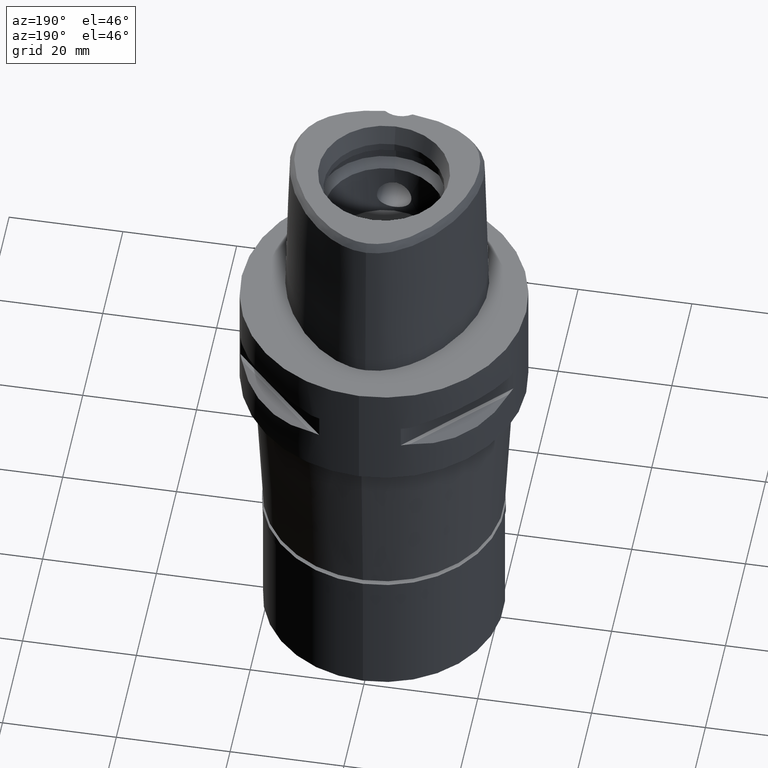
[diagram: clean part render]
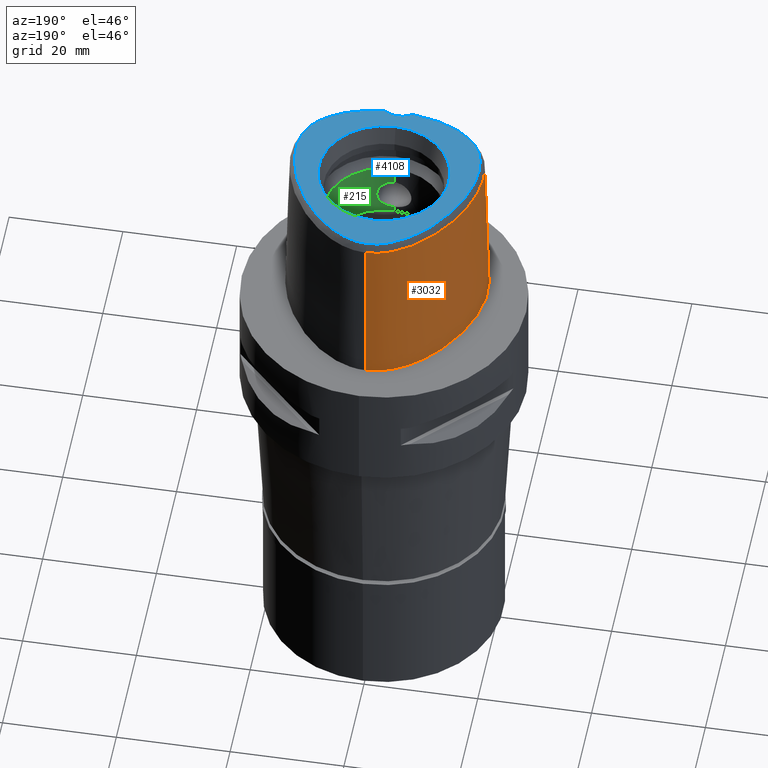
[diagram: same view with three faces highlighted in distinct colors, each labeled with its STEP entity id]
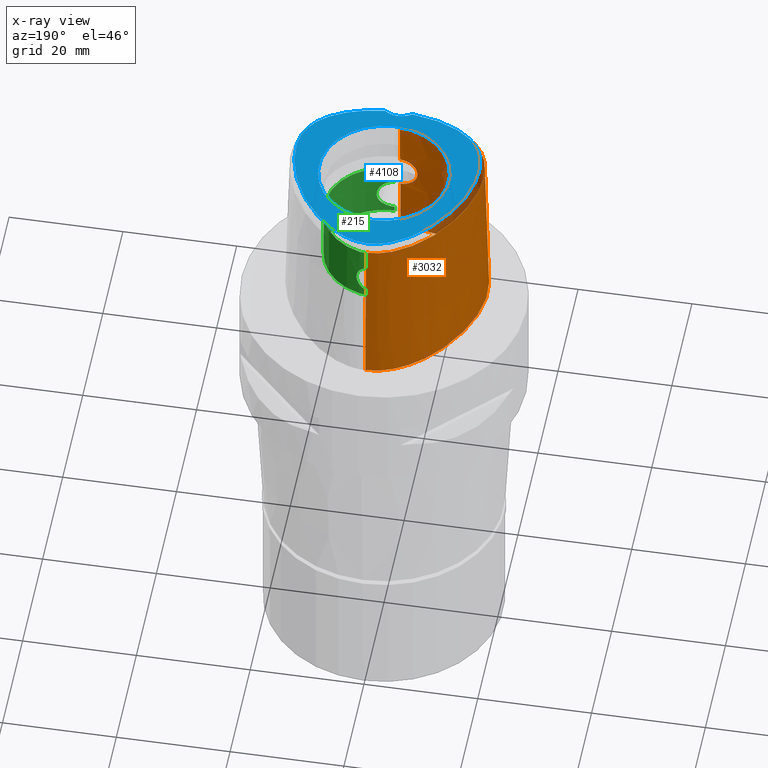
[diagram: x-ray of the same camera — body ghosted, the three highlighted faces saturated]
A machine part, auxiliary view with three faces highlighted in distinct colors.
The next image is the same camera in x-ray (body ghosted, the three faces saturated) — at least one of them is partly hidden behind the body in this view.
Their STEP definitions:

[orange] entity #3032 — the highlighted face is a freeform B-spline surface patch.
#6 = CARTESIAN_POINT ( 'NONE',  ( -16.79165457291767893, -0.3537785057482470408, 28.52071192347001016 ) ) ;
#18 = CARTESIAN_POINT ( 'NONE',  ( -3.191384176940533557, -15.58827403572775339, 27.24714128231333277 ) ) ;
#20 = CARTESIAN_POINT ( 'NONE',  ( -1.200046882047508534, -16.14948273154543656, 11.19596910874579621 ) ) ;
#31 = CARTESIAN_POINT ( 'NONE',  ( 6.782136804503950174E-08, -15.90128720080378955, 22.15000025259135441 ) ) ;
#38 = CARTESIAN_POINT ( 'NONE',  ( -11.46563507393519821, 12.45218749468715203, 3.275401779228442889E-07 ) ) ;
#46 = VERTEX_POINT ( 'NONE', #3898 ) ;
#51 = CARTESIAN_POINT ( 'NONE',  ( -11.44887813062000070, -13.28533852423000106, 19.20396064871000164 ) ) ;
#61 = CARTESIAN_POINT ( 'NONE',  ( -4.728927203296781734, 17.73480468001338295, 3.275401779228442889E-07 ) ) ;
#76 = CARTESIAN_POINT ( 'NONE',  ( -15.57503090482999930, -8.992248284477000198, 29.09114830944000119 ) ) ;
#87 = CARTESIAN_POINT ( 'NONE',  ( -1.185240961617966660, -16.15026635704342084, 11.18970954939994122 ) ) ;
#98 = CARTESIAN_POINT ( 'NONE',  ( -8.697311544789000592, -14.35163117687999979, 29.09114830944000119 ) ) ;
#114 = CARTESIAN_POINT ( 'NONE',  ( -0.1860095695895606360, -16.02877864023999877, 17.05000000000000071 ) ) ;
#128 = CARTESIAN_POINT ( 'NONE',  ( -15.78948631901000077, -9.116064175945000514, 19.20396064871000164 ) ) ;
#152 = CARTESIAN_POINT ( 'NONE',  ( -14.61870768331000114, -11.12154150373999961, 9.316772987989999422 ) ) ;
#164 = LINE ( 'NONE', #3989, #2437 ) ;
#199 = B_SPLINE_CURVE_WITH_KNOTS ( 'NONE', 3,
 ( #2734, #18, #3508, #3131 ),
 .UNSPECIFIED., .F., .F.,
 ( 4, 4 ),
 ( 0.0000000000000000000, 1.000000000000000000 ),
 .UNSPECIFIED. ) ;
#219 = CARTESIAN_POINT ( 'NONE',  ( -0.3789226270088274506, -16.02723154424910135, 17.03294418566278878 ) ) ;
#243 = CARTESIAN_POINT ( 'NONE',  ( -2.543826128444885537, -16.03134158490991368, 12.31726274100129181 ) ) ;
#270 = CARTESIAN_POINT ( 'NONE',  ( -1.671121799479825087, -15.99125384014654649, 16.55147925626843985 ) ) ;
#301 = CARTESIAN_POINT ( 'NONE',  ( -1.489022098419910067, -16.13222843888998526, 11.33656707562976429 ) ) ;
#325 = CARTESIAN_POINT ( 'NONE',  ( -1.647720974877695754, -15.99226611569824463, 16.56665347345779082 ) ) ;
#339 = CARTESIAN_POINT ( 'NONE',  ( -1.890839659135000073, 17.83402856777999901, 29.09114830944000119 ) ) ;
#350 = CARTESIAN_POINT ( 'NONE',  ( -2.835998777458668574, -15.98895818849806183, 12.87753709205216346 ) ) ;
#378 = CARTESIAN_POINT ( 'NONE',  ( -0.7803301224170414718, -16.17127761896326277, 11.02218832487930555 ) ) ;
#390 = B_SPLINE_CURVE_WITH_KNOTS ( 'NONE', 3,
 ( #880, #114, #219, #4343, #2080, #1707, #4323, #3264, #4787, #919, #551, #3589, #1687, #3210, #4734, #1305, #2842, #4417, #325, #270, #1046, #1096, #3385, #4866, #4837, #4100, #4047, #2132, #1435, #1408, #3762, #4153, #4888, #729, #2537, #2208, #2969, #1456, #3364, #4520, #2612, #2991, #3682, #4495, #2237, #2946, #4076, #2921, #1485, #994, #1832, #2155, #2584, #4125, #3287, #350, #1855, #4472, #1069, #4912, #2511, #624, #705, #653, #3660, #1780, #2559, #243, #1755, #4810, #1380, #1807, #4447, #3738, #1022, #3311, #676, #2180, #3711, #301, #3342, #449, #2311, #20, #87, #4266, #3487, #378, #824, #4547 ),
 .UNSPECIFIED., .F., .F.,
 ( 4, 2, 2, 1, 1, 1, 2, 2, 2, 2, 1, 2, 2, 2, 1, 1, 2, 2, 2, 2, 1, 1, 1, 2, 2, 2, 2, 2, 2, 2, 2, 1, 1, 1, 2, 2, 2, 2, 1, 2, 2, 2, 1, 1, 2, 2, 2, 2, 1, 1, 1, 2, 2, 4 ),
 ( 0.0000000000000000000, 0.06249999999999138189, 0.09374999999998695488, 0.1093749999999848871, 0.1171874999999839989, 0.1210937499999835826, 0.1230468749999833328, 0.1249999999999830969, 0.1562499999999829303, 0.1718749999999830413, 0.1796874999999831246, 0.1835937499999834299, 0.1874999999999837075, 0.2187499999999852340, 0.2343749999999857336, 0.2421874999999856226, 0.2460937499999858724, 0.2499999999999861777, 0.3124999999999945599, 0.3437499999999987232, 0.3593750000000009992, 0.3671875000000024425, 0.3710937500000031641, 0.3730468750000034972, 0.3750000000000038303, 0.4375000000000062172, 0.4687500000000071609, 0.4843750000000076050, 0.5000000000000081046, 0.5625000000000098810, 0.5937500000000106581, 0.6093750000000108802, 0.6171875000000109912, 0.6210937500000108802, 0.6230468750000107692, 0.6250000000000107692, 0.6562500000000132117, 0.6718750000000142109, 0.6796875000000144329, 0.6835937500000143219, 0.6875000000000142109, 0.7187500000000138778, 0.7343750000000137668, 0.7421875000000134337, 0.7460937500000133227, 0.7500000000000132117, 0.8125000000000074385, 0.8437500000000044409, 0.8593750000000031086, 0.8671875000000023315, 0.8710937500000019984, 0.8730468750000018874, 0.8750000000000016653, 1.000000000000000000 ),
 .UNSPECIFIED. ) ;
#392 = CARTESIAN_POINT ( 'NONE',  ( -13.06460239552872693, -11.91950051571915381, 28.52071192347001016 ) ) ;
#393 = CARTESIAN_POINT ( 'NONE',  ( -11.28662494265000049, 12.30111481449999822, 9.316772987989999422 ) ) ;
#396 = CARTESIAN_POINT ( 'NONE',  ( 2.030224829794000080E-07, -15.83752876601000281, 24.70000006102999990 ) ) ;
#411 = ORIENTED_EDGE ( 'NONE', *, *, #4860, .T. ) ;
#427 = CARTESIAN_POINT ( 'NONE',  ( -14.78833379803161918, -11.28232909590543365, 3.275401779228442889E-07 ) ) ;
#437 = CARTESIAN_POINT ( 'NONE',  ( 0.3639062175299999646, 18.20947641861000221, 19.20396064871000164 ) ) ;
#449 = CARTESIAN_POINT ( 'NONE',  ( -1.304824586066348324, -16.14367980511029188, 11.24258093298054284 ) ) ;
#464 = CARTESIAN_POINT ( 'NONE',  ( -11.57144729726000065, -13.50085885087000115, 9.316772987989999422 ) ) ;
#471 = VERTEX_POINT ( 'NONE', #2406 ) ;
#481 = CARTESIAN_POINT ( 'NONE',  ( -16.51672824005182250, 3.703437497204792095, 3.275401779228442889E-07 ) ) ;
#491 = CARTESIAN_POINT ( 'NONE',  ( -8.951632340721999981, -15.05250171712000018, -0.5704146727340999590 ) ) ;
#508 = VERTEX_POINT ( 'NONE', #1696 ) ;
#512 = CARTESIAN_POINT ( 'NONE',  ( 1.079551361523999997, -16.20136645066000014, 9.316772987989999422 ) ) ;
#535 = CARTESIAN_POINT ( 'NONE',  ( -16.00353255898000171, -8.149703184965000347, 29.09114830944000119 ) ) ;
#551 = CARTESIAN_POINT ( 'NONE',  ( -1.154649350554053377, -16.01059875151097245, 16.82300001247257626 ) ) ;
#559 = CARTESIAN_POINT ( 'NONE',  ( -14.79871907669000031, -11.29217324020000035, -0.5704146727340999590 ) ) ;
#598 = ORIENTED_EDGE ( 'NONE', *, *, #3381, .F. ) ;
#624 = CARTESIAN_POINT ( 'NONE',  ( -2.676760126935361583, -16.01335860443708370, 12.53714519679417627 ) ) ;
#653 = CARTESIAN_POINT ( 'NONE',  ( -2.611019405680786498, -16.02245593392139611, 12.42336243517981131 ) ) ;
#676 = CARTESIAN_POINT ( 'NONE',  ( -1.994661405232182050, -16.09284332352415348, 11.68121651172323716 ) ) ;
#705 = CARTESIAN_POINT ( 'NONE',  ( -2.651693848328784853, -16.01689519106128401, 12.49206992028460839 ) ) ;
#717 = CARTESIAN_POINT ( 'NONE',  ( -15.58740380353632560, -8.999391780896635495, 28.52071192347001016 ) ) ;
#719 = CARTESIAN_POINT ( 'NONE',  ( 0.5455910017128000611, 18.19844124879999825, 19.20396064871000164 ) ) ;
#729 = CARTESIAN_POINT ( 'NONE',  ( -2.727932080410536475, -15.93733995233605150, 15.36492654818570713 ) ) ;
#739 = CARTESIAN_POINT ( 'NONE',  ( -1.941729203734000153, 18.07741836826999915, 19.20396064871000164 ) ) ;
#783 = CARTESIAN_POINT ( 'NONE',  ( -16.01658395503491761, -8.155509241189490055, 28.52071192347001016 ) ) ;
#787 = CARTESIAN_POINT ( 'NONE',  ( -13.96223225275999980, 8.061115404063999179, 19.20396064871000164 ) ) ;
#824 = CARTESIAN_POINT ( 'NONE',  ( -0.3804472261498169638, -16.18126839358999902, 10.95000000000000107 ) ) ;
#832 = CARTESIAN_POINT ( 'NONE',  ( 0.7201291708520999313, -16.21519148822999767, 9.316772987989999422 ) ) ;
#844 = CARTESIAN_POINT ( 'NONE',  ( -8.946741553376490685, -15.03902342976076234, 3.275401779228442889E-07 ) ) ;
#860 = CARTESIAN_POINT ( 'NONE',  ( -15.05961626393000152, -9.784614154063000058, 29.09114830944000119 ) ) ;
#880 = CARTESIAN_POINT ( 'NONE',  ( 0.0000000000000000000, -16.02877864023999877, 17.05000000000000071 ) ) ;
#883 = CARTESIAN_POINT ( 'NONE',  ( -2.866360985331999843E-11, 17.98202997909999823, 28.52071728569000086 ) ) ;
#884 = CARTESIAN_POINT ( 'NONE',  ( -1.321318947036000058, -16.50155084553999885, -0.5704146727340999590 ) ) ;
#887 = B_SPLINE_SURFACE_WITH_KNOTS ( 'NONE', 3, 3, ( 
 ( #3075, #3846, #719, #3006 ),
 ( #1113, #4930, #437, #1446 ),
 ( #2982, #3801, #1084, #4210 ),
 ( #2603, #4141, #739, #339 ),
 ( #1845, #3376, #2648, #3774 ),
 ( #4903, #1919, #3431, #2249 ),
 ( #1871, #393, #3406, #1498 ),
 ( #3049, #1152, #787, #2300 ),
 ( #1271, #4722, #2750, #932 ),
 ( #3124, #2450, #4648, #3521 ),
 ( #3574, #1673, #3978, #2404 ),
 ( #4256, #1973, #1220, #3948 ),
 ( #1596, #3550, #3873, #2424 ),
 ( #1997, #2063, #1291, #535 ),
 ( #2805, #1573, #128, #76 ),
 ( #2040, #3102, #4329, #860 ),
 ( #559, #152, #4283, #2378 ),
 ( #3194, #2826, #1646, #4352 ),
 ( #1246, #464, #51, #3900 ),
 ( #491, #4628, #906, #98 ),
 ( #4676, #1619, #3147, #1201 ),
 ( #884, #2726, #2780, #4308 ),
 ( #3173, #832, #2347, #3500 ),
 ( #3924, #512, #2017, #4702 ) ),
 .UNSPECIFIED., .F., .F., .F.,
 ( 4, 1, 1, 1, 1, 1, 1, 1, 1, 1, 1, 1, 1, 1, 1, 1, 1, 1, 1, 1, 1, 4 ),
 ( 4, 4 ),
 ( -0.01173812893910999855, 0.0000000000000000000, 0.04166666666846000067, 0.08333333333505001106, 0.1666666666683000175, 0.2500000000013999912, 0.3333333333346000238, 0.4166666666678000008, 0.5000000000009999779, 0.5416666666675999942, 0.5833333333340999793, 0.6250000000008000267, 0.6458333333340000593, 0.6666666666674000430, 0.6875000000005999645, 0.7083333333339000282, 0.7500000000005000445, 0.7916666666671999808, 0.8333333333336999660, 0.9166666666668999985, 1.000000000000000000, 1.017968513185000035 ),
 ( 2.362879537865000135E-09, 0.9999998794932000168 ),
 .UNSPECIFIED. ) ;
#906 = CARTESIAN_POINT ( 'NONE',  ( -8.782085143433999264, -14.58525469029000199, 19.20396064871000164 ) ) ;
#919 = CARTESIAN_POINT ( 'NONE',  ( -1.142332392166680810, -16.01097948216497358, 16.82800652385417806 ) ) ;
#932 = CARTESIAN_POINT ( 'NONE',  ( -15.82879754333000122, 3.455165202030999971, 29.09114830944000119 ) ) ;
#994 = CARTESIAN_POINT ( 'NONE',  ( -3.033174470079178064, -15.94941370605617514, 13.62317640955338938 ) ) ;
#1022 = CARTESIAN_POINT ( 'NONE',  ( -2.174903967716026898, -16.07399873101336496, 11.86167149722171743 ) ) ;
#1046 = CARTESIAN_POINT ( 'NONE',  ( -1.684236301197035157, -15.99068050411804620, 16.54283389550539241 ) ) ;
#1059 = CARTESIAN_POINT ( 'NONE',  ( -0.6295828121030326852, 17.98203011042097188, 28.52071192347001016 ) ) ;
#1067 = DIRECTION ( 'NONE',  ( -1.987095108678950929E-12, -0.02499051295371941192, -0.9996876883618752707 ) ) ;
#1069 = CARTESIAN_POINT ( 'NONE',  ( -2.820449305715940991, -15.99150796465939273, 12.83914045378499225 ) ) ;
#1076 = VERTEX_POINT ( 'NONE', #1424 ) ;
#1083 = CARTESIAN_POINT ( 'NONE',  ( -8.702202515497363677, -14.36510996956001129, 28.52071192347001016 ) ) ;
#1084 = CARTESIAN_POINT ( 'NONE',  ( -0.4636176464276999809, 18.23430325006000174, 19.20396064871000164 ) ) ;
#1096 = CARTESIAN_POINT ( 'NONE',  ( -1.777739861706574720, -15.98655714082971713, 16.48034954023893306 ) ) ;
#1113 = CARTESIAN_POINT ( 'NONE',  ( 0.3838142946181999915, 18.70350312453000186, -0.5704146727340999590 ) ) ;
#1131 = CARTESIAN_POINT ( 'NONE',  ( -3.168920966622999824, -15.55911077538999976, 28.52071192346999950 ) ) ;
#1141 = CARTESIAN_POINT ( 'NONE',  ( -17.49754711497198301, -0.2285937514376237822, 3.275401779228442889E-07 ) ) ;
#1146 = ORIENTED_EDGE ( 'NONE', *, *, #1300, .T. ) ;
#1152 = CARTESIAN_POINT ( 'NONE',  ( -14.17736240222000177, 8.185312176229000869, 9.316772987989999422 ) ) ;
#1166 = CARTESIAN_POINT ( 'NONE',  ( 9.149203677431999547E-11, 18.69499999997999851, 2.020235830475999669E-13 ) ) ;
#1201 = CARTESIAN_POINT ( 'NONE',  ( -4.922186782408999761, -15.43572510489000038, 29.09114830944000119 ) ) ;
#1220 = CARTESIAN_POINT ( 'NONE',  ( -17.08644819934000125, -5.387673900770999502, 19.20396064871000164 ) ) ;
#1246 = CARTESIAN_POINT ( 'NONE',  ( -11.69401646390999971, -13.71637917750000035, -0.5704146727340999590 ) ) ;
#1271 = CARTESIAN_POINT ( 'NONE',  ( -16.53021708513999855, 3.708305584274000033, -0.5704146727340999590 ) ) ;
#1291 = CARTESIAN_POINT ( 'NONE',  ( -16.22974814620999950, -8.250337662134000993, 19.20396064871000164 ) ) ;
#1300 = EDGE_CURVE ( 'NONE', #508, #2615, #2255, .T. ) ;
#1305 = CARTESIAN_POINT ( 'NONE',  ( -1.509334869949237712, -15.99801316580282418, 16.65089544971684177 ) ) ;
#1344 = EDGE_CURVE ( 'NONE', #508, #1641, #3837, .T. ) ;
#1380 = CARTESIAN_POINT ( 'NONE',  ( -2.326795673539356457, -16.05749942887523218, 12.02743345691540355 ) ) ;
#1408 = CARTESIAN_POINT ( 'NONE',  ( -2.319868985705007436, -15.95889227881300343, 15.99336665119000678 ) ) ;
#1424 = CARTESIAN_POINT ( 'NONE',  ( -2.866360985331999843E-11, 17.98202997909999823, 28.52071728569000086 ) ) ;
#1435 = CARTESIAN_POINT ( 'NONE',  ( -2.147290074988068564, -15.96826519308856795, 16.16606823402926807 ) ) ;
#1446 = CARTESIAN_POINT ( 'NONE',  ( 0.3539521789857999479, 17.96246306563999795, 29.09114830944000119 ) ) ;
#1456 = CARTESIAN_POINT ( 'NONE',  ( -2.810669180507297860, -15.93357175435962425, 15.18434255724911708 ) ) ;
#1485 = CARTESIAN_POINT ( 'NONE',  ( -3.049900212868041471, -15.94261167837582960, 13.81468546120752805 ) ) ;
#1498 = CARTESIAN_POINT ( 'NONE',  ( -10.90668505882000083, 11.98047074731000095, 29.09114830944000119 ) ) ;
#1508 = CARTESIAN_POINT ( 'NONE',  ( -2.486005696898000252E-11, -16.45500000000000185, 2.032818358088999889E-13 ) ) ;
#1518 = CARTESIAN_POINT ( 'NONE',  ( -15.84228689413420810, 3.460033471611936307, 28.52071192347001016 ) ) ;
#1531 = CARTESIAN_POINT ( 'NONE',  ( -13.50690092972070744, -12.48264647791478410, 3.275401779228442889E-07 ) ) ;
#1557 = CARTESIAN_POINT ( 'NONE',  ( -16.66912841390272959, -8.445800777916920410, 3.275401779228442889E-07 ) ) ;
#1573 = CARTESIAN_POINT ( 'NONE',  ( -16.00394173319999780, -9.239880067414000919, 9.316772987989999422 ) ) ;
#1585 = CARTESIAN_POINT ( 'NONE',  ( -17.71143734739757747, -3.269218750053261680, 3.275401779228442889E-07 ) ) ;
#1596 = CARTESIAN_POINT ( 'NONE',  ( -17.17866842869000266, -7.169980044429999921, -0.5704146727340999590 ) ) ;
#1619 = CARTESIAN_POINT ( 'NONE',  ( -5.009809423304999676, -15.92506882444000027, 9.316772987989999422 ) ) ;
#1641 = VERTEX_POINT ( 'NONE', #4124 ) ;
#1646 = CARTESIAN_POINT ( 'NONE',  ( -13.20908635829999866, -12.10346124347000085, 19.20396064871000164 ) ) ;
#1673 = CARTESIAN_POINT ( 'NONE',  ( -17.47781019209000064, -3.270737581796999915, 9.316772987989999422 ) ) ;
#1687 = CARTESIAN_POINT ( 'NONE',  ( -1.246904710702340546, -16.00770134240423914, 16.78481881916647822 ) ) ;
#1696 = CARTESIAN_POINT ( 'NONE',  ( 2.030224829794000080E-07, -15.83752876601000281, 24.70000006102999990 ) ) ;
#1707 = CARTESIAN_POINT ( 'NONE',  ( -0.9200171648291806115, -16.01717542030822727, 16.90838961258409157 ) ) ;
#1755 = CARTESIAN_POINT ( 'NONE',  ( -2.481413756882850485, -16.03938740154340437, 12.22374741087844718 ) ) ;
#1780 = CARTESIAN_POINT ( 'NONE',  ( -2.567601606276564308, -16.02824055683983673, 12.35375696231888476 ) ) ;
#1807 = CARTESIAN_POINT ( 'NONE',  ( -2.277845221344409588, -16.06297226044946314, 11.97064251377653044 ) ) ;
#1832 = CARTESIAN_POINT ( 'NONE',  ( -2.977125115133986810, -15.96287852150345898, 13.32982323607667752 ) ) ;
#1845 = CARTESIAN_POINT ( 'NONE',  ( -4.735056264371000800, 17.74784407876000003, -0.5704146727340999590 ) ) ;
#1855 = CARTESIAN_POINT ( 'NONE',  ( -2.828519626698094758, -15.99018834924777543, 12.85893844538407826 ) ) ;
#1871 = CARTESIAN_POINT ( 'NONE',  ( -11.47659488456999988, 12.46143684808999907, -0.5704146727340999590 ) ) ;
#1882 = CARTESIAN_POINT ( 'NONE',  ( -16.20602471253441124, -9.356552730272488461, 3.275401779228442889E-07 ) ) ;
#1895 = CARTESIAN_POINT ( 'NONE',  ( -16.85489160761372318, -5.354527567565168233, 28.52071192347001016 ) ) ;
#1919 = CARTESIAN_POINT ( 'NONE',  ( -7.822764759652000244, 15.64591006835000186, 9.316772987989999422 ) ) ;
#1973 = CARTESIAN_POINT ( 'NONE',  ( -17.33218229794999843, -5.422849683295000389, 9.316772987989999422 ) ) ;
#1997 = CARTESIAN_POINT ( 'NONE',  ( -16.68217932066000131, -8.451606616472000510, -0.5704146727340999590 ) ) ;
#2017 = CARTESIAN_POINT ( 'NONE',  ( 1.070056060797999864, -15.95437368278000001, 19.20396064871000164 ) ) ;
#2040 = CARTESIAN_POINT ( 'NONE',  ( -15.66039569311999990, -10.22138777393999831, -0.5704146727340999590 ) ) ;
#2063 = CARTESIAN_POINT ( 'NONE',  ( -16.45596373342999641, -8.350972139302999864, 9.316772987989999422 ) ) ;
#2080 = CARTESIAN_POINT ( 'NONE',  ( -0.7716804096337155361, -16.02065638628776512, 16.95256773572716824 ) ) ;
#2082 = ORIENTED_EDGE ( 'NONE', *, *, #3695, .F. ) ;
#2085 = VERTEX_POINT ( 'NONE', #3041 ) ;
#2132 = CARTESIAN_POINT ( 'NONE',  ( -2.139722381400449791, -15.96867257770620618, 16.17353267031687380 ) ) ;
#2155 = CARTESIAN_POINT ( 'NONE',  ( -2.953287761239811626, -15.96791042230702118, 13.23104891048737386 ) ) ;
#2180 = CARTESIAN_POINT ( 'NONE',  ( -1.824495776586472884, -16.10763072133370599, 11.54770719424410785 ) ) ;
#2208 = CARTESIAN_POINT ( 'NONE',  ( -2.789432624430153940, -15.93448362603995605, 15.23385107219887935 ) ) ;
#2224 = CARTESIAN_POINT ( 'NONE',  ( -14.26907056455771716, -10.79012254419541605, 28.52071192347001016 ) ) ;
#2237 = CARTESIAN_POINT ( 'NONE',  ( -3.040936525959399894, -15.93294854341576539, 14.23999838212622038 ) ) ;
#2249 = CARTESIAN_POINT ( 'NONE',  ( -7.514850676476000579, 15.25369623382000128, 29.09114830944000119 ) ) ;
#2255 = B_SPLINE_CURVE_WITH_KNOTS ( 'NONE', 3,
 ( #4236, #3476, #3078, #3454 ),
 .UNSPECIFIED., .F., .F.,
 ( 4, 4 ),
 ( 0.0000000000000000000, 1.000000000000000000 ),
 .UNSPECIFIED. ) ;
#2260 = CARTESIAN_POINT ( 'NONE',  ( -14.38008118977668737, 8.302343745885506721, 3.275401779228442889E-07 ) ) ;
#2262 = EDGE_CURVE ( 'NONE', #1076, #2338, #164, .T. ) ;
#2272 = CARTESIAN_POINT ( 'NONE',  ( -5.902447850708635535, -15.16907854011455647, 28.52071192347000661 ) ) ;
#2300 = CARTESIAN_POINT ( 'NONE',  ( -13.74710210329999960, 7.936918631899998466, 29.09114830944000119 ) ) ;
#2311 = CARTESIAN_POINT ( 'NONE',  ( -1.234760267101895792, -16.14760890805739280, 11.21096960602441506 ) ) ;
#2338 = VERTEX_POINT ( 'NONE', #4321 ) ;
#2347 = CARTESIAN_POINT ( 'NONE',  ( 0.7138086211726999419, -15.96808631713000182, 19.20396064871000164 ) ) ;
#2363 = CARTESIAN_POINT ( 'NONE',  ( -2.040572355980817321, 18.55015624192801837, 3.275401779228442889E-07 ) ) ;
#2378 = CARTESIAN_POINT ( 'NONE',  ( -14.25868489653999838, -10.78027803082999903, 29.09114830944000119 ) ) ;
#2404 = CARTESIAN_POINT ( 'NONE',  ( -16.98194845725999969, -3.273961224793999758, 29.09114830944000119 ) ) ;
#2406 = CARTESIAN_POINT ( 'NONE',  ( -2.486005696898000252E-11, -16.45500000000000185, 2.032818358088999889E-13 ) ) ;
#2424 = CARTESIAN_POINT ( 'NONE',  ( -16.46533706250000151, -6.958244296578000920, 29.09114830944000119 ) ) ;
#2437 = VECTOR ( 'NONE', #2840, 1000.000000000000114 ) ;
#2450 = CARTESIAN_POINT ( 'NONE',  ( -17.26695538114000072, -0.2694874680106999487, 9.316772987989999422 ) ) ;
#2495 = ORIENTED_EDGE ( 'NONE', *, *, #2262, .T. ) ;
#2507 = CARTESIAN_POINT ( 'NONE',  ( -3.235121119988999983, -15.64755630481999837, 24.69999999999999929 ) ) ;
#2511 = CARTESIAN_POINT ( 'NONE',  ( -2.746377481657158448, -16.00326057041207761, 12.66963668950923427 ) ) ;
#2537 = CARTESIAN_POINT ( 'NONE',  ( -2.757857542925465033, -15.93590525390315271, 15.30389640927966610 ) ) ;
#2559 = CARTESIAN_POINT ( 'NONE',  ( -2.552453281223320936, -16.03022206925511384, 12.33036638904224169 ) ) ;
#2584 = CARTESIAN_POINT ( 'NONE',  ( -2.909137552899626389, -15.97627371699405785, 13.08234413149751241 ) ) ;
#2602 = CARTESIAN_POINT ( 'NONE',  ( -15.07117015428156570, -9.793013966485498045, 28.52071192347001016 ) ) ;
#2603 = CARTESIAN_POINT ( 'NONE',  ( -2.043508292932000092, 18.56419796924999943, -0.5704146727340999590 ) ) ;
#2612 = CARTESIAN_POINT ( 'NONE',  ( -2.897875851388389101, -15.92997726602838782, 14.97345579577848973 ) ) ;
#2615 = VERTEX_POINT ( 'NONE', #2507 ) ;
#2625 = CARTESIAN_POINT ( 'NONE',  ( -13.75951393052348415, 7.944084103042390765, 28.52071192347001016 ) ) ;
#2636 = CARTESIAN_POINT ( 'NONE',  ( -17.56373942119188669, -5.455996092585014168, 3.275401779228442889E-07 ) ) ;
#2647 = CARTESIAN_POINT ( 'NONE',  ( -11.33338053121988231, -13.08225253590170922, 28.52071192347001016 ) ) ;
#2648 = CARTESIAN_POINT ( 'NONE',  ( -4.522582269136999678, 17.29581184845000408, 19.20396064871000164 ) ) ;
#2672 = CARTESIAN_POINT ( 'NONE',  ( -7.523733151595483726, 15.26501052510122491, 28.52071192347001016 ) ) ;
#2726 = CARTESIAN_POINT ( 'NONE',  ( -1.309813752411000065, -16.25411918082999918, 9.316772987989999422 ) ) ;
#2734 = CARTESIAN_POINT ( 'NONE',  ( -3.168920966622999824, -15.55911077538999976, 28.52071192346999950 ) ) ;
#2736 = CARTESIAN_POINT ( 'NONE',  ( -5.051093166120994127, -16.15562499189650580, 3.275401779228442889E-07 ) ) ;
#2750 = CARTESIAN_POINT ( 'NONE',  ( -16.06260405725999973, 3.539545329444999666, 19.20396064871000164 ) ) ;
#2766 = LINE ( 'NONE', #4295, #4518 ) ;
#2780 = CARTESIAN_POINT ( 'NONE',  ( -1.298308557785999851, -16.00668751611999951, 19.20396064871000164 ) ) ;
#2805 = CARTESIAN_POINT ( 'NONE',  ( -16.21839714737999927, -9.363695958881999459, -0.5704146727340999590 ) ) ;
#2826 = CARTESIAN_POINT ( 'NONE',  ( -13.36241663531000157, -12.29868532790000124, 9.316772987989999422 ) ) ;
#2840 = DIRECTION ( 'NONE',  ( 4.211609386183893157E-12, 0.02499051285773934081, -0.9996876883642746847 ) ) ;
#2842 = CARTESIAN_POINT ( 'NONE',  ( -1.578081282717826994, -15.99520688258699863, 16.61014732800261484 ) ) ;
#2921 = CARTESIAN_POINT ( 'NONE',  ( -3.050024389103566325, -15.93682728871437604, 14.04426652284395161 ) ) ;
#2946 = CARTESIAN_POINT ( 'NONE',  ( -3.044373801969618931, -15.93377869067415986, 14.19140803545453799 ) ) ;
#2958 = CARTESIAN_POINT ( 'NONE',  ( -4.422474562381712992, 17.08283562090281649, 28.52071192347001016 ) ) ;
#2969 = CARTESIAN_POINT ( 'NONE',  ( -2.804416461969645002, -15.93383585885214515, 15.19914549896235556 ) ) ;
#2982 = CARTESIAN_POINT ( 'NONE',  ( -0.4893119563234000213, 18.72969240721000261, -0.5704146727340999590 ) ) ;
#2991 = CARTESIAN_POINT ( 'NONE',  ( -2.955918695228479720, -15.92874700794745202, 14.77770287554523776 ) ) ;
#3005 = CARTESIAN_POINT ( 'NONE',  ( -3.738627773282890310, -15.49270868799628786, 28.52071192347000661 ) ) ;
#3006 = CARTESIAN_POINT ( 'NONE',  ( 0.5305684280088999172, 17.95174207345999662, 29.09114830944000119 ) ) ;
#3032 = ADVANCED_FACE ( 'NONE', ( #3751 ), #887, .T. ) ;
#3041 = CARTESIAN_POINT ( 'NONE',  ( -3.168920966622999824, -15.55911077538999976, 28.52071192346999950 ) ) ;
#3049 = CARTESIAN_POINT ( 'NONE',  ( -14.39249255168000019, 8.309508948394000782, -0.5704146727340999590 ) ) ;
#3075 = CARTESIAN_POINT ( 'NONE',  ( 0.5756361491207999670, 18.69183959947999796, -0.5704146727340999590 ) ) ;
#3078 = CARTESIAN_POINT ( 'NONE',  ( -2.169052023958002007, -15.77399788493355537, 24.70000016923097874 ) ) ;
#3102 = CARTESIAN_POINT ( 'NONE',  ( -15.46013588339000044, -10.07579656730999851, 9.316772987989999422 ) ) ;
#3113 = CARTESIAN_POINT ( 'NONE',  ( -0.6801907852773161345, 18.69499999181705974, 3.275401779228442889E-07 ) ) ;
#3124 = CARTESIAN_POINT ( 'NONE',  ( -17.51166498483000211, -0.2260900529789000302, -0.5704146727340999590 ) ) ;
#3131 = CARTESIAN_POINT ( 'NONE',  ( -3.235121119988999983, -15.64755630481999837, 24.69999999999999929 ) ) ;
#3147 = CARTESIAN_POINT ( 'NONE',  ( -4.965998102857000163, -15.68039696466999899, 19.20396064871000164 ) ) ;
#3173 = CARTESIAN_POINT ( 'NONE',  ( 0.7264497205314001116, -16.46229665932999708, -0.5704146727340999590 ) ) ;
#3194 = CARTESIAN_POINT ( 'NONE',  ( -13.51574691231999914, -12.49390941233000163, -0.5704146727340999590 ) ) ;
#3210 = CARTESIAN_POINT ( 'NONE',  ( -1.331640452556058118, -16.00477934145614611, 16.74576209627321077 ) ) ;
#3219 = ORIENTED_EDGE ( 'NONE', *, *, #1344, .F. ) ;
#3255 = EDGE_CURVE ( 'NONE', #1641, #46, #390, .T. ) ;
#3264 = CARTESIAN_POINT ( 'NONE',  ( -1.080687980688739058, -16.01283629952124699, 16.85233897233271350 ) ) ;
#3287 = CARTESIAN_POINT ( 'NONE',  ( -2.852964108057064241, -15.98613240798083623, 12.92095709857100339 ) ) ;
#3295 = EDGE_CURVE ( 'NONE', #2338, #471, #4429, .T. ) ;
#3311 = CARTESIAN_POINT ( 'NONE',  ( -2.167461438340644087, -16.07478142648848518, 11.85411610869218535 ) ) ;
#3342 = CARTESIAN_POINT ( 'NONE',  ( -1.365876440253429136, -16.14000093520526491, 11.27254294479066665 ) ) ;
#3364 = CARTESIAN_POINT ( 'NONE',  ( -2.814800487489387937, -15.93339868692382488, 15.17448999603847426 ) ) ;
#3376 = CARTESIAN_POINT ( 'NONE',  ( -4.628819266754000239, 17.52182796359999983, 9.316772987989999422 ) ) ;
#3381 = EDGE_CURVE ( 'NONE', #46, #471, #2766, .T. ) ;
#3385 = CARTESIAN_POINT ( 'NONE',  ( -1.858121229639702499, -15.98284882596949075, 16.42071856142349162 ) ) ;
#3406 = CARTESIAN_POINT ( 'NONE',  ( -11.09665500074000022, 12.14079278090000003, 19.20396064871000164 ) ) ;
#3416 = CARTESIAN_POINT ( 'NONE',  ( -1.683697722043396405, -16.45499999181052075, 3.275401779228442889E-07 ) ) ;
#3431 = CARTESIAN_POINT ( 'NONE',  ( -7.668807718064000412, 15.44980315108000113, 19.20396064871000164 ) ) ;
#3445 = EDGE_LOOP ( 'NONE', ( #598, #3532, #3219, #1146, #2082, #411, #2495, #4023 ) ) ;
#3454 = CARTESIAN_POINT ( 'NONE',  ( -3.235121119988999983, -15.64755630481999837, 24.69999999999999929 ) ) ;
#3476 = CARTESIAN_POINT ( 'NONE',  ( -1.084489118008814090, -15.83754148632353420, 24.70000016923097874 ) ) ;
#3487 = CARTESIAN_POINT ( 'NONE',  ( -1.171575576434892074, -16.15098385800270009, 11.18398276020156601 ) ) ;
#3500 = CARTESIAN_POINT ( 'NONE',  ( 0.7074880714933999837, -15.72098114601999974, 29.09114830944000119 ) ) ;
#3508 = CARTESIAN_POINT ( 'NONE',  ( -3.213444811939455636, -15.61774738279276953, 25.97357064115666603 ) ) ;
#3521 = CARTESIAN_POINT ( 'NONE',  ( -16.77753617375999795, -0.3562822980742999524, 29.09114830944000119 ) ) ;
#3532 = ORIENTED_EDGE ( 'NONE', *, *, #3255, .F. ) ;
#3550 = CARTESIAN_POINT ( 'NONE',  ( -16.94089130663000020, -7.099401461812000491, 9.316772987989999422 ) ) ;
#3574 = CARTESIAN_POINT ( 'NONE',  ( -17.72574105950000245, -3.269125760297999950, -0.5704146727340999590 ) ) ;
#3589 = CARTESIAN_POINT ( 'NONE',  ( -1.161963448143296329, -16.01037049747073127, 16.81999471490733811 ) ) ;
#3660 = CARTESIAN_POINT ( 'NONE',  ( -2.589913444526260378, -16.02530027108240063, 12.38873572170439274 ) ) ;
#3682 = CARTESIAN_POINT ( 'NONE',  ( -3.012997481774653430, -15.92993551890240944, 14.48403558616877973 ) ) ;
#3695 = EDGE_CURVE ( 'NONE', #2085, #2615, #199, .T. ) ;
#3696 = CARTESIAN_POINT ( 'NONE',  ( -16.47905549557057014, -6.962316292880330160, 28.52071192347001016 ) ) ;
#3711 = CARTESIAN_POINT ( 'NONE',  ( -1.572520811368416593, -16.12649376600615270, 11.38472095010891216 ) ) ;
#3738 = CARTESIAN_POINT ( 'NONE',  ( -2.192347023517017046, -16.07215629485219210, 11.87955887064578064 ) ) ;
#3751 = FACE_OUTER_BOUND ( 'NONE', #3445, .T. ) ;
#3762 = CARTESIAN_POINT ( 'NONE',  ( -2.453157249255233818, -15.95160785209424148, 15.82331514067401912 ) ) ;
#3774 = CARTESIAN_POINT ( 'NONE',  ( -4.416345271520000004, 17.06979573329000033, 29.09114830944000119 ) ) ;
#3801 = CARTESIAN_POINT ( 'NONE',  ( -0.4764648013755999889, 18.48199782862999641, 9.316772987989999422 ) ) ;
#3822 = B_SPLINE_CURVE_WITH_KNOTS ( 'NONE', 3,
 ( #1131, #3005, #2272, #1083, #2647, #392, #2224, #2602, #717, #783, #3696, #1895, #4534, #6, #1518, #2625, #4580, #2672, #2958, #4485, #1059, #883 ),
 .UNSPECIFIED., .F., .F.,
 ( 4, 1, 1, 1, 1, 1, 1, 1, 1, 1, 1, 1, 1, 1, 1, 1, 1, 1, 1, 4 ),
 ( 0.0000000000000000000, 0.03108635432775135043, 0.1191694130250651740, 0.1632109423736163578, 0.2072524717223789004, 0.2512940010710358330, 0.2733147657453643409, 0.2953355304195869890, 0.3173562950940211347, 0.3393770597682438939, 0.3834185891170065474, 0.4274601184655577590, 0.4715016478142146639, 0.5595847065115283625, 0.6476677652088421722, 0.7357508239061559818, 0.8238338826033640983, 0.9119169413007307545, 0.9559584706493771122, 1.000000000000000000 ),
 .UNSPECIFIED. ) ;
#3834 = CARTESIAN_POINT ( 'NONE',  ( -7.967839659125057317, 15.83070311850226197, 3.275401779228442889E-07 ) ) ;
#3837 = B_SPLINE_CURVE_WITH_KNOTS ( 'NONE', 3,
 ( #396, #31, #3901, #3849 ),
 .UNSPECIFIED., .F., .F.,
 ( 4, 4 ),
 ( 0.0000000000000000000, 1.000000000000000000 ),
 .UNSPECIFIED. ) ;
#3846 = CARTESIAN_POINT ( 'NONE',  ( 0.5606135754168000140, 18.44514042413999988, 9.316772987989999422 ) ) ;
#3849 = CARTESIAN_POINT ( 'NONE',  ( 0.0000000000000000000, -16.02877864023999877, 17.05000000000000071 ) ) ;
#3873 = CARTESIAN_POINT ( 'NONE',  ( -16.70311418457000130, -7.028822879194999373, 19.20396064871000164 ) ) ;
#3898 = CARTESIAN_POINT ( 'NONE',  ( -3.094567913400000190E-12, -16.18126839358999902, 10.94999999999999929 ) ) ;
#3900 = CARTESIAN_POINT ( 'NONE',  ( -11.32630896396999987, -13.06981819760000185, 29.09114830944000119 ) ) ;
#3901 = CARTESIAN_POINT ( 'NONE',  ( 6.797657524792993908E-08, -15.96503292052325484, 19.60000012629569710 ) ) ;
#3924 = CARTESIAN_POINT ( 'NONE',  ( 1.089046662250000130, -16.44835921853999849, -0.5704146727340999590 ) ) ;
#3948 = CARTESIAN_POINT ( 'NONE',  ( -16.84071410073000052, -5.352498118247000392, 29.09114830944000119 ) ) ;
#3978 = CARTESIAN_POINT ( 'NONE',  ( -17.22987932467999883, -3.272349403296000325, 19.20396064871000164 ) ) ;
#3989 = CARTESIAN_POINT ( 'NONE',  ( -2.866360985331999843E-11, 17.98202997909999823, 28.52071728569000086 ) ) ;
#4023 = ORIENTED_EDGE ( 'NONE', *, *, #3295, .T. ) ;
#4047 = CARTESIAN_POINT ( 'NONE',  ( -2.121841374836335614, -15.96962928976701157, 16.19099185722664558 ) ) ;
#4076 = CARTESIAN_POINT ( 'NONE',  ( -3.048918288824055800, -15.93569181003063484, 14.09458409078545671 ) ) ;
#4100 = CARTESIAN_POINT ( 'NONE',  ( -2.094858927816664718, -15.97106233740284686, 16.21701581232822775 ) ) ;
#4124 = CARTESIAN_POINT ( 'NONE',  ( 0.0000000000000000000, -16.02877864023999877, 17.05000000000000071 ) ) ;
#4125 = CARTESIAN_POINT ( 'NONE',  ( -2.884965141857560589, -15.98065922520799909, 13.00785839096715613 ) ) ;
#4141 = CARTESIAN_POINT ( 'NONE',  ( -1.992618748333000012, 18.32080816875999929, 9.316772987989999422 ) ) ;
#4153 = CARTESIAN_POINT ( 'NONE',  ( -2.615901618704160381, -15.94298692150345964, 15.57147967508558750 ) ) ;
#4174 = CARTESIAN_POINT ( 'NONE',  ( -11.68694516177361287, -13.70394530536240474, 3.275401779228442889E-07 ) ) ;
#4210 = CARTESIAN_POINT ( 'NONE',  ( -0.4507704914799000040, 17.98660867148999998, 29.09114830944000119 ) ) ;
#4236 = CARTESIAN_POINT ( 'NONE',  ( 2.030224829794000080E-07, -15.83752876601000281, 24.70000006102999990 ) ) ;
#4256 = CARTESIAN_POINT ( 'NONE',  ( -17.57791639655999916, -5.458025465818999500, -0.5704146727340999590 ) ) ;
#4266 = CARTESIAN_POINT ( 'NONE',  ( -1.175386497639763883, -16.15078445366179594, 11.18557374674746718 ) ) ;
#4283 = CARTESIAN_POINT ( 'NONE',  ( -14.43869628992000109, -10.95090976728000065, 19.20396064871000164 ) ) ;
#4295 = CARTESIAN_POINT ( 'NONE',  ( -3.094567913400000190E-12, -16.18126839358999902, 10.94999999999999929 ) ) ;
#4308 = CARTESIAN_POINT ( 'NONE',  ( -1.286803363160000213, -15.75925585141000163, 29.09114830944000119 ) ) ;
#4321 = CARTESIAN_POINT ( 'NONE',  ( 9.149203677431999547E-11, 18.69499999997999851, 2.020235830475999669E-13 ) ) ;
#4323 = CARTESIAN_POINT ( 'NONE',  ( -0.9942354941257962597, -16.01528989706931583, 16.88423654522949136 ) ) ;
#4329 = CARTESIAN_POINT ( 'NONE',  ( -15.25987607365999921, -9.930205360687999416, 19.20396064871000164 ) ) ;
#4343 = CARTESIAN_POINT ( 'NONE',  ( -0.6729281202622269253, -16.02259025627639133, 16.97651237904559096 ) ) ;
#4352 = CARTESIAN_POINT ( 'NONE',  ( -13.05575608128000020, -11.90823715904000046, 29.09114830944000119 ) ) ;
#4417 = CARTESIAN_POINT ( 'NONE',  ( -1.612726137508865287, -15.99376531707252802, 16.58900383220370500 ) ) ;
#4429 = B_SPLINE_CURVE_WITH_KNOTS ( 'NONE', 3,
 ( #1166, #3113, #2363, #61, #3834, #38, #2260, #481, #1141, #1585, #2636, #4572, #1557, #1882, #4637, #427, #1531, #4174, #844, #2736, #3416, #1508 ),
 .UNSPECIFIED., .F., .F.,
 ( 4, 1, 1, 1, 1, 1, 1, 1, 1, 1, 1, 1, 1, 1, 1, 1, 1, 1, 1, 4 ),
 ( 0.0000000000000000000, 0.04166666666846000067, 0.08333333333505001106, 0.1666666666683000175, 0.2500000000013999912, 0.3333333333346000238, 0.4166666666678000008, 0.5000000000009999779, 0.5416666666675999942, 0.5833333333340999793, 0.6250000000008000267, 0.6458333333340000593, 0.6666666666674000430, 0.6875000000005999645, 0.7083333333339000282, 0.7500000000005000445, 0.7916666666671999808, 0.8333333333336999660, 0.9166666666668999985, 1.000000000000000000 ),
 .UNSPECIFIED. ) ;
#4447 = CARTESIAN_POINT ( 'NONE',  ( -2.218346767529179697, -16.06939536445589667, 11.90655067609835527 ) ) ;
#4472 = CARTESIAN_POINT ( 'NONE',  ( -2.823487070365362506, -15.99101270351569859, 12.84654193248369225 ) ) ;
#4485 = CARTESIAN_POINT ( 'NONE',  ( -1.893775706187246444, 17.84807082153833591, 28.52071192347001016 ) ) ;
#4495 = CARTESIAN_POINT ( 'NONE',  ( -3.027041479268741231, -15.93083733890011899, 14.38613028388799187 ) ) ;
#4518 = VECTOR ( 'NONE', #1067, 1000.000000000000114 ) ;
#4520 = CARTESIAN_POINT ( 'NONE',  ( -2.816407481551082448, -15.93333177460183236, 15.17063687596093402 ) ) ;
#4534 = CARTESIAN_POINT ( 'NONE',  ( -16.99625270563014823, -3.273868231552472974, 28.52071192347001016 ) ) ;
#4547 = CARTESIAN_POINT ( 'NONE',  ( -3.094567913400000190E-12, -16.18126839358999902, 10.94999999999999929 ) ) ;
#4572 = CARTESIAN_POINT ( 'NONE',  ( -17.16495050992491045, -7.165908200787007409, 3.275401779228442889E-07 ) ) ;
#4580 = CARTESIAN_POINT ( 'NONE',  ( -10.91764528035418813, 11.98972044748468058, 28.52071192347001016 ) ) ;
#4628 = CARTESIAN_POINT ( 'NONE',  ( -8.866858742077999622, -14.81887820370999975, 9.316772987989999422 ) ) ;
#4637 = CARTESIAN_POINT ( 'NONE',  ( -15.64884223592450141, -10.21298827642671014, 3.275401779228442889E-07 ) ) ;
#4648 = CARTESIAN_POINT ( 'NONE',  ( -17.02224577744999934, -0.3128848830425000060, 19.20396064871000164 ) ) ;
#4676 = CARTESIAN_POINT ( 'NONE',  ( -5.053620743751999100, -16.16974068421999888, -0.5704146727340999590 ) ) ;
#4702 = CARTESIAN_POINT ( 'NONE',  ( 1.060560760071999953, -15.70738091489999988, 29.09114830944000119 ) ) ;
#4722 = CARTESIAN_POINT ( 'NONE',  ( -16.29641057119999914, 3.623925456859999894, 9.316772987989999422 ) ) ;
#4734 = CARTESIAN_POINT ( 'NONE',  ( -1.464230115316312641, -15.99978155752924991, 16.67600899016695948 ) ) ;
#4787 = CARTESIAN_POINT ( 'NONE',  ( -1.123850819246240640, -16.01154604563820527, 16.83544840130009135 ) ) ;
#4810 = CARTESIAN_POINT ( 'NONE',  ( -2.421847348362510477, -16.04659734725419540, 12.14335169878023635 ) ) ;
#4837 = CARTESIAN_POINT ( 'NONE',  ( -2.030787586191474148, -15.97439197203201466, 16.27657083949403827 ) ) ;
#4860 = EDGE_CURVE ( 'NONE', #2085, #1076, #3822, .T. ) ;
#4866 = CARTESIAN_POINT ( 'NONE',  ( -1.974011923642614574, -15.97722169910660206, 16.32556985268800531 ) ) ;
#4888 = CARTESIAN_POINT ( 'NONE',  ( -2.663989615087106078, -15.94049756288776187, 15.48802251320619483 ) ) ;
#4903 = CARTESIAN_POINT ( 'NONE',  ( -7.976721801239999188, 15.84201698560999994, -0.5704146727340999590 ) ) ;
#4912 = CARTESIAN_POINT ( 'NONE',  ( -2.785351805582555684, -15.99721084885887734, 12.75429401941662100 ) ) ;
#4930 = CARTESIAN_POINT ( 'NONE',  ( 0.3738602560741000058, 18.45648977157000203, 9.316772987989999422 ) ) ;

[blue] entity #4108 — the highlighted planar face has unit normal (0, 0, 1).
#3 = CARTESIAN_POINT ( 'NONE',  ( -14.01158736112907377, 5.375902008631639362, 29.99999999999336353 ) ) ;
#10 = CARTESIAN_POINT ( 'NONE',  ( 4.159771979224698768, -14.59766906204499826, 30.00000000000319744 ) ) ;
#24 = CARTESIAN_POINT ( 'NONE',  ( -5.437876102061795613, -14.35707869331474029, 29.99999999999697664 ) ) ;
#30 = CARTESIAN_POINT ( 'NONE',  ( 14.55828366952990294, 4.114142377746004442, 30.00000000000303046 ) ) ;
#52 = CARTESIAN_POINT ( 'NONE',  ( 15.90185233182718783, -0.6139199331565132756, 30.00000000000169820 ) ) ;
#77 = CARTESIAN_POINT ( 'NONE',  ( 10.27891984618185184, 11.24296481357878541, 29.99999999999908340 ) ) ;
#244 = DIRECTION ( 'NONE',  ( 0.0000000000000000000, 1.000000000000000000, 0.0000000000000000000 ) ) ;
#259 = EDGE_CURVE ( 'NONE', #2141, #782, #377, .T. ) ;
#308 = CARTESIAN_POINT ( 'NONE',  ( -13.66338899148874653, -10.18351204678418043, 29.99999999999511502 ) ) ;
#331 = CARTESIAN_POINT ( 'NONE',  ( -6.047371482395458742, 15.09400374235481479, 29.99999999999315392 ) ) ;
#357 = CARTESIAN_POINT ( 'NONE',  ( -10.60021164902823188, -12.49731984708594545, 29.99999999999032596 ) ) ;
#367 = CARTESIAN_POINT ( 'NONE',  ( 13.66559393375393050, -10.18115111193445976, 29.99999999999819877 ) ) ;
#377 = CIRCLE ( 'NONE', #698, 11.43782217350000074 ) ;
#385 = CARTESIAN_POINT ( 'NONE',  ( -16.08550869466998634, -4.376322360226326147, 29.99999999999890221 ) ) ;
#395 = CARTESIAN_POINT ( 'NONE',  ( 9.420872132874164251, 12.20574557692856210, 30.00000000001033840 ) ) ;
#410 = CARTESIAN_POINT ( 'NONE',  ( -3.771910472264554670, 16.33551310926539912, 29.99999999999421263 ) ) ;
#419 = CARTESIAN_POINT ( 'NONE',  ( 8.816245487876447129, -13.33426548781124943, 30.00000000000095568 ) ) ;
#466 = CARTESIAN_POINT ( 'NONE',  ( 1.774127352510906253, 16.97169788998893125, 30.00000000000295231 ) ) ;
#660 = PLANE ( 'NONE',  #1647 ) ;
#682 = CARTESIAN_POINT ( 'NONE',  ( -7.700642921101245264, 13.84415306341698404, 29.99999999999732836 ) ) ;
#688 = EDGE_CURVE ( 'NONE', #782, #2141, #4663, .T. ) ;
#698 = AXIS2_PLACEMENT_3D ( 'NONE', #3162, #3115, #2713 ) ;
#711 = CARTESIAN_POINT ( 'NONE',  ( -10.27907733182665595, 11.24278573582880369, 29.99999999998770761 ) ) ;
#753 = CARTESIAN_POINT ( 'NONE',  ( -15.04149970408038151, -8.249836848501050923, 29.99999999999725375 ) ) ;
#777 = CARTESIAN_POINT ( 'NONE',  ( -15.71065119878746863, -6.536303815289398855, 29.99999999998942712 ) ) ;
#782 = VERTEX_POINT ( 'NONE', #2811 ) ;
#789 = CARTESIAN_POINT ( 'NONE',  ( 11.92667412982082276, 9.061218325782515848, 30.00000000000228795 ) ) ;
#833 = CARTESIAN_POINT ( 'NONE',  ( 15.71128456931488238, -6.534031654962921820, 30.00000000000482103 ) ) ;
#882 = EDGE_LOOP ( 'NONE', ( #4397, #4548 ) ) ;
#929 = ORIENTED_EDGE ( 'NONE', *, *, #982, .F. ) ;
#982 = EDGE_CURVE ( 'NONE', #1723, #4836, #3560, .T. ) ;
#1003 = ORIENTED_EDGE ( 'NONE', *, *, #3937, .F. ) ;
#1054 = CARTESIAN_POINT ( 'NONE',  ( -11.92713521269608634, 9.060544494663204773, 29.99999999999337774 ) ) ;
#1099 = CARTESIAN_POINT ( 'NONE',  ( 2.406543924163999648, -14.80491841401999942, 30.00000000000000000 ) ) ;
#1102 = CARTESIAN_POINT ( 'NONE',  ( -16.12543283908553349, -3.535877041748126448, 29.99999999999715072 ) ) ;
#1127 = CARTESIAN_POINT ( 'NONE',  ( -2.535517866335862625, -14.79323888261677311, 29.99999999999892708 ) ) ;
#1134 = CARTESIAN_POINT ( 'NONE',  ( 2.538962679605447192, -14.79292722369866375, 30.00000000000500933 ) ) ;
#1145 = CARTESIAN_POINT ( 'NONE',  ( -8.556928701965405892, 13.07433695898737724, 29.99999999999164046 ) ) ;
#1154 = CARTESIAN_POINT ( 'NONE',  ( 15.02033012161443182, 2.869071121501648669, 30.00000000000547473 ) ) ;
#1181 = CARTESIAN_POINT ( 'NONE',  ( 16.11273027396801893, -2.627494158581237915, 30.00000000000432010 ) ) ;
#1202 = CARTESIAN_POINT ( 'NONE',  ( 2.412811123804728286, 16.81558681049768822, 30.00000000000554579 ) ) ;
#1221 = CARTESIAN_POINT ( 'NONE',  ( 15.29323375805328666, -7.718923543003030296, 29.99999999999998224 ) ) ;
#1441 = CARTESIAN_POINT ( 'NONE',  ( -1.772880577021905824, 16.97196055716499075, 29.99999999999321432 ) ) ;
#1463 = CARTESIAN_POINT ( 'NONE',  ( -15.39727819201346470, 1.655076005305609499, 29.99999999999737454 ) ) ;
#1501 = CARTESIAN_POINT ( 'NONE',  ( 6.658132732489098871, -14.05774790738736790, 30.00000000000192912 ) ) ;
#1514 = CARTESIAN_POINT ( 'NONE',  ( -4.150496093831451461, -14.59917355179919340, 29.99999999999619504 ) ) ;
#1523 = CARTESIAN_POINT ( 'NONE',  ( 14.01089202938897849, 5.377385268371448923, 29.99999999999844391 ) ) ;
#1535 = CARTESIAN_POINT ( 'NONE',  ( -15.02099409650903183, 2.867135356160913418, 29.99999999999898037 ) ) ;
#1545 = CARTESIAN_POINT ( 'NONE',  ( 16.04058509949097910, -1.654113685488525887, 30.00000000000254374 ) ) ;
#1574 = CARTESIAN_POINT ( 'NONE',  ( 16.08569500454932921, -4.373922630229363229, 30.00000000000024869 ) ) ;
#1597 = CARTESIAN_POINT ( 'NONE',  ( 12.04928217776110522, -11.59002493206824624, 30.00000000000489209 ) ) ;
#1647 = AXIS2_PLACEMENT_3D ( 'NONE', #2164, #3642, #3292 ) ;
#1723 = VERTEX_POINT ( 'NONE', #1099 ) ;
#1725 = CARTESIAN_POINT ( 'NONE',  ( 0.0000000000000000000, -18.00000000000000000, 30.00000000000000000 ) ) ;
#1814 = CARTESIAN_POINT ( 'NONE',  ( -9.750168658359758211, -12.92810664734509807, 30.00000000000292033 ) ) ;
#1838 = CARTESIAN_POINT ( 'NONE',  ( -15.99949242929155702, -5.153835065648757485, 29.99999999999767297 ) ) ;
#1861 = CARTESIAN_POINT ( 'NONE',  ( -16.04083576397671251, -1.656498942828760867, 29.99999999999169376 ) ) ;
#1864 = AXIS2_PLACEMENT_3D ( 'NONE', #3662, #2538, #244 ) ;
#1873 = CARTESIAN_POINT ( 'NONE',  ( 10.60500548644038687, -12.49469941439547860, 29.99999999999583267 ) ) ;
#1887 = CARTESIAN_POINT ( 'NONE',  ( -15.68979199461572094, 0.4896967076516786643, 29.99999999999435829 ) ) ;
#1898 = CARTESIAN_POINT ( 'NONE',  ( 0.1912597614439547344, 17.15328888648438266, 30.00000000000301981 ) ) ;
#1912 = CARTESIAN_POINT ( 'NONE',  ( -8.809985523415752695, -13.33678107331816065, 29.99999999999847589 ) ) ;
#1921 = CARTESIAN_POINT ( 'NONE',  ( 13.38374903490436907, 6.636915464740826387, 30.00000000000798650 ) ) ;
#1945 = CARTESIAN_POINT ( 'NONE',  ( 3.078265684544093439, 16.60532678262845252, 30.00000000000095213 ) ) ;
#1965 = CARTESIAN_POINT ( 'NONE',  ( -6.301949014321000775E-11, 17.15328888647999861, 30.00000000000000000 ) ) ;
#1974 = CARTESIAN_POINT ( 'NONE',  ( 14.44767169632900305, -9.224476417585497856, 29.99999999999864642 ) ) ;
#2112 = VERTEX_POINT ( 'NONE', #1965 ) ;
#2141 = VERTEX_POINT ( 'NONE', #3814 ) ;
#2164 = CARTESIAN_POINT ( 'NONE',  ( 0.0000000000000000000, 0.0000000000000000000, 30.00000000000000000 ) ) ;
#2187 = CARTESIAN_POINT ( 'NONE',  ( -5.257871200568569492, 15.58649213537615985, 29.99999999999716493 ) ) ;
#2216 = CARTESIAN_POINT ( 'NONE',  ( -9.420854217684757614, 12.20577134109721484, 29.99999999999675993 ) ) ;
#2243 = CARTESIAN_POINT ( 'NONE',  ( -6.650243356161045227, -14.05992414833229986, 30.00000000000045119 ) ) ;
#2251 = CARTESIAN_POINT ( 'NONE',  ( 11.36765809995727494, -12.04801986072731168, 30.00000000000228795 ) ) ;
#2265 = CARTESIAN_POINT ( 'NONE',  ( -15.29229544370104499, -7.721097396978159111, 29.99999999999411671 ) ) ;
#2275 = CARTESIAN_POINT ( 'NONE',  ( 0.5691917915716130372, 17.14006060248783925, 30.00000000000531841 ) ) ;
#2291 = CARTESIAN_POINT ( 'NONE',  ( -14.55898035934443868, 4.112421202110597029, 29.99999999999881695 ) ) ;
#2302 = CARTESIAN_POINT ( 'NONE',  ( 15.51702143705241355, -7.148634146068893358, 29.99999999999501554 ) ) ;
#2538 = DIRECTION ( 'NONE',  ( 0.0000000000000000000, 0.0000000000000000000, 1.000000000000000000 ) ) ;
#2568 = CARTESIAN_POINT ( 'NONE',  ( -7.776737509123173631, -13.71663015822493570, 29.99999999999943512 ) ) ;
#2578 = B_SPLINE_CURVE_WITH_KNOTS ( 'NONE', 3,
 ( #3874, #1898, #2275, #3030, #466, #1202, #1945, #4257, #3803, #3453, #2650, #3125, #4584, #3776, #395, #77, #3103, #789, #4649, #1921, #1523, #30, #1154, #3501, #3077, #52, #1545, #1181, #3475, #1574, #4629, #4284, #833, #2302, #1221, #3826, #2676, #1974, #3433, #367, #3051, #2751, #1597, #2251, #1873, #3408, #419, #4932, #1501, #4562, #10, #2701, #1134, #4186 ),
 .UNSPECIFIED., .F., .F.,
 ( 4, 1, 1, 1, 1, 1, 1, 1, 1, 1, 1, 1, 1, 1, 1, 1, 1, 1, 1, 1, 1, 1, 1, 1, 1, 1, 1, 1, 1, 1, 1, 1, 1, 1, 1, 1, 1, 1, 1, 1, 1, 1, 1, 1, 1, 1, 1, 1, 1, 1, 1, 4 ),
 ( 0.0000000000000000000, 0.01988587058640001182, 0.03977174117009996124, 0.05965761175399997285, 0.07954348233780006439, 0.09942935292160004490, 0.1193152235055000565, 0.1392010940893000370, 0.1590869646731999376, 0.1789728352568999981, 0.1988587058408000097, 0.2187445764247000213, 0.2386304470083999707, 0.2585163175922999823, 0.2784021881761000738, 0.2982880587598999433, 0.3181739293438000660, 0.3380597999276000465, 0.3579456705113999160, 0.3778315410952000075, 0.3977174116791000191, 0.4176032822630000307, 0.4374891528466999802, 0.4573750234305999918, 0.4772608940143999723, 0.4971467645981999528, 0.5170326351820999644, 0.5369185057659000559, 0.5568043763497000365, 0.5766902469335999371, 0.5965761175174000286, 0.6164619881012000091, 0.6363478586849999896, 0.6562337292689000012, 0.6761195998528000128, 0.6960054704364999623, 0.7158913410203999739, 0.7357772116042000654, 0.7556630821880000459, 0.7755489527718999465, 0.7954348233557000381, 0.8153206939395000186, 0.8352065645232999991, 0.8550924351072000107, 0.8749783056909999912, 0.8948641762747999717, 0.9147500468586799993, 0.9346359174424899718, 0.9545217880263200394, 0.9744076586101599879, 0.9942935291939859477, 1.000000000000000000 ),
 .UNSPECIFIED. ) ;
#2642 = CARTESIAN_POINT ( 'NONE',  ( -12.04571048960086443, -11.59259605427083528, 29.99999999999816325 ) ) ;
#2650 = CARTESIAN_POINT ( 'NONE',  ( 6.048015628560602153, 15.09357031579874864, 30.00000000000359535 ) ) ;
#2662 = CARTESIAN_POINT ( 'NONE',  ( -3.123276563984372700, -14.73562494724993677, 29.99999999999708322 ) ) ;
#2676 = CARTESIAN_POINT ( 'NONE',  ( 14.76450668991192572, -8.742560395149837404, 30.00000000000431655 ) ) ;
#2696 = B_SPLINE_CURVE_WITH_KNOTS ( 'NONE', 3,
 ( #4552, #1127, #2662, #1514, #24, #2243, #2568, #1912, #1814, #357, #3444, #2642, #3718, #4200, #308, #4131, #4179, #4107, #753, #2265, #3792, #777, #4159, #1838, #385, #1102, #4871, #1861, #4920, #1887, #1463, #1535, #2291, #3, #3348, #3043, #1054, #4576, #711, #2216, #1145, #682, #3816, #331, #2187, #4479, #410, #3744, #3370, #1441, #2976, #4894, #2998, #4526 ),
 .UNSPECIFIED., .F., .F.,
 ( 4, 1, 1, 1, 1, 1, 1, 1, 1, 1, 1, 1, 1, 1, 1, 1, 1, 1, 1, 1, 1, 1, 1, 1, 1, 1, 1, 1, 1, 1, 1, 1, 1, 1, 1, 1, 1, 1, 1, 1, 1, 1, 1, 1, 1, 1, 1, 1, 1, 1, 1, 4 ),
 ( 0.0000000000000000000, 0.005566907331700066131, 0.02545556918509994659, 0.04534423103860008020, 0.06523289289190004059, 0.08512155474529992105, 0.1050102165987000236, 0.1248988784521999351, 0.1447875403055000065, 0.1646762021588999980, 0.1845648640122999895, 0.2044535258655999499, 0.2243421877191000835, 0.2442308495724999640, 0.2641195114257999244, 0.2840081732792000269, 0.3038968351325999073, 0.3237854969860000098, 0.3436741588394000013, 0.3635628206927999928, 0.3834514825461999843, 0.4033401443995000557, 0.4232288062529999673, 0.4431174681064000698, 0.4630061299597000302, 0.4828947918130999106, 0.5027834536666000442, 0.5226721155199000046, 0.5425607773732999961, 0.5624494392267000986, 0.5823381010799999480, 0.6022267629334999706, 0.6221154247869000731, 0.6420040866403000646, 0.6618927484936000250, 0.6817814103470000164, 0.7016700722005000390, 0.7215587340537999994, 0.7414473959071999909, 0.7613360577605999824, 0.7812247196139999739, 0.8011133814673999654, 0.8210020433207999568, 0.8408907051741000283, 0.8607793670275000197, 0.8806680288810000423, 0.9005566907343299787, 0.9204453525877199782, 0.9403340144411099777, 0.9602226762944999772, 0.9801113381478899766, 1.000000000000000000 ),
 .UNSPECIFIED. ) ;
#2701 = CARTESIAN_POINT ( 'NONE',  ( 3.130495111450359857, -14.73481892792100645, 30.00000000000239453 ) ) ;
#2713 = DIRECTION ( 'NONE',  ( 0.0000000000000000000, -1.000000000000000000, 0.0000000000000000000 ) ) ;
#2751 = CARTESIAN_POINT ( 'NONE',  ( 12.65514534656895762, -11.12483370674097216, 30.00000000000779465 ) ) ;
#2811 = CARTESIAN_POINT ( 'NONE',  ( 0.0000000000000000000, 11.43782217350000074, 30.00000000000000000 ) ) ;
#2976 = CARTESIAN_POINT ( 'NONE',  ( -1.160151454488471234, 17.07862209883406379, 29.99999999998811973 ) ) ;
#2998 = CARTESIAN_POINT ( 'NONE',  ( -0.1909045559979918594, 17.15328888648425121, 29.99999999999527844 ) ) ;
#3030 = CARTESIAN_POINT ( 'NONE',  ( 1.161482229273270717, 17.07843133414447578, 30.00000000000506972 ) ) ;
#3043 = CARTESIAN_POINT ( 'NONE',  ( -12.68647747557310446, 7.869569494476071014, 29.99999999999584332 ) ) ;
#3047 = CARTESIAN_POINT ( 'NONE',  ( -2.406542353497000075, -14.80491723099000012, 30.00000000000000000 ) ) ;
#3051 = CARTESIAN_POINT ( 'NONE',  ( 13.19176257967298049, -10.65479018522654009, 30.00000000000042988 ) ) ;
#3077 = CARTESIAN_POINT ( 'NONE',  ( 15.68929135223803861, 0.4919393172822459914, 30.00000000000551736 ) ) ;
#3103 = CARTESIAN_POINT ( 'NONE',  ( 11.11868440496116150, 10.19157821280415455, 30.00000000000159872 ) ) ;
#3115 = DIRECTION ( 'NONE',  ( 0.0000000000000000000, 0.0000000000000000000, 1.000000000000000000 ) ) ;
#3125 = CARTESIAN_POINT ( 'NONE',  ( 6.863227115065352990, 14.51498137220609230, 29.99999999999675282 ) ) ;
#3162 = CARTESIAN_POINT ( 'NONE',  ( 0.0000000000000000000, 1.570609519905999910E-14, 30.00000000000000000 ) ) ;
#3256 = DIRECTION ( 'NONE',  ( 0.0000000000000000000, 0.0000000000000000000, 1.000000000000000000 ) ) ;
#3292 = DIRECTION ( 'NONE',  ( 1.000000000000000000, 0.0000000000000000000, 0.0000000000000000000 ) ) ;
#3348 = CARTESIAN_POINT ( 'NONE',  ( -13.38439869301318552, 6.635703175840125922, 29.99999999999657163 ) ) ;
#3370 = CARTESIAN_POINT ( 'NONE',  ( -2.411640998825409277, 16.81591728050976897, 29.99999999999742073 ) ) ;
#3408 = CARTESIAN_POINT ( 'NONE',  ( 9.755668685252926409, -12.92551394023265132, 29.99999999999910116 ) ) ;
#3433 = CARTESIAN_POINT ( 'NONE',  ( 14.08238499151679690, -9.704590128437843077, 29.99999999999893419 ) ) ;
#3444 = CARTESIAN_POINT ( 'NONE',  ( -11.36350786441879457, -12.05063008428485638, 29.99999999999254996 ) ) ;
#3453 = CARTESIAN_POINT ( 'NONE',  ( 5.258649622039200722, 15.58603480842832667, 30.00000000000435563 ) ) ;
#3475 = CARTESIAN_POINT ( 'NONE',  ( 16.12546998862746506, -3.533461825553628533, 30.00000000000627765 ) ) ;
#3501 = CARTESIAN_POINT ( 'NONE',  ( 15.39668103801909282, 1.657188505494622710, 29.99999999999644729 ) ) ;
#3560 = CIRCLE ( 'NONE', #4902, 4.000000000000000888 ) ;
#3642 = DIRECTION ( 'NONE',  ( 0.0000000000000000000, 0.0000000000000000000, 1.000000000000000000 ) ) ;
#3662 = CARTESIAN_POINT ( 'NONE',  ( 0.0000000000000000000, 1.570609519905999910E-14, 30.00000000000000000 ) ) ;
#3718 = CARTESIAN_POINT ( 'NONE',  ( -12.65209017756387411, -11.12734424253040011, 29.99999999999531042 ) ) ;
#3744 = CARTESIAN_POINT ( 'NONE',  ( -3.077178008231761908, 16.60571267458238154, 30.00000000000473221 ) ) ;
#3776 = CARTESIAN_POINT ( 'NONE',  ( 8.557117433366698833, 13.07415149352704375, 30.00000000000311218 ) ) ;
#3792 = CARTESIAN_POINT ( 'NONE',  ( -15.51623783590802930, -7.150856098906433367, 29.99999999999837996 ) ) ;
#3803 = CARTESIAN_POINT ( 'NONE',  ( 4.499552315896073296, 15.99769543814754158, 29.99999999999984013 ) ) ;
#3814 = CARTESIAN_POINT ( 'NONE',  ( 0.0000000000000000000, -11.43782217350000074, 30.00000000000000000 ) ) ;
#3816 = CARTESIAN_POINT ( 'NONE',  ( -6.862723739080228924, 14.51536572209164611, 29.99999999999702283 ) ) ;
#3826 = CARTESIAN_POINT ( 'NONE',  ( 15.04259016984726038, -8.247723288183413715, 30.00000000000490630 ) ) ;
#3874 = CARTESIAN_POINT ( 'NONE',  ( -6.301949014321000775E-11, 17.15328888647999861, 30.00000000000000000 ) ) ;
#3937 = EDGE_CURVE ( 'NONE', #2112, #1723, #2578, .T. ) ;
#3982 = ORIENTED_EDGE ( 'NONE', *, *, #4230, .F. ) ;
#4084 = FACE_BOUND ( 'NONE', #882, .T. ) ;
#4107 = CARTESIAN_POINT ( 'NONE',  ( -14.76322153899183576, -8.744676018998870148, 29.99999999999706546 ) ) ;
#4108 = ADVANCED_FACE ( 'NONE', ( #4791, #4084 ), #660, .T. ) ;
#4131 = CARTESIAN_POINT ( 'NONE',  ( -14.08052509618714865, -9.706873108418408336, 29.99999999998949818 ) ) ;
#4159 = CARTESIAN_POINT ( 'NONE',  ( -15.87300767660229361, -5.872112237378858346, 29.99999999999754507 ) ) ;
#4179 = CARTESIAN_POINT ( 'NONE',  ( -14.44611813752449692, -9.226676124713462102, 29.99999999999164757 ) ) ;
#4186 = CARTESIAN_POINT ( 'NONE',  ( 2.406543924163999648, -14.80491841401999942, 30.00000000000000000 ) ) ;
#4200 = CARTESIAN_POINT ( 'NONE',  ( -13.18915979441534603, -10.65722997876485323, 29.99999999999955591 ) ) ;
#4230 = EDGE_CURVE ( 'NONE', #4836, #2112, #2696, .T. ) ;
#4257 = CARTESIAN_POINT ( 'NONE',  ( 3.772905803807628633, 16.33508552418969373, 30.00000000000714451 ) ) ;
#4284 = CARTESIAN_POINT ( 'NONE',  ( 15.87349190487884520, -5.869792298898072858, 29.99999999999977618 ) ) ;
#4313 = EDGE_LOOP ( 'NONE', ( #1003, #3982, #929 ) ) ;
#4397 = ORIENTED_EDGE ( 'NONE', *, *, #259, .F. ) ;
#4479 = CARTESIAN_POINT ( 'NONE',  ( -4.498660734199283695, 15.99814720006166979, 29.99999999999533529 ) ) ;
#4526 = CARTESIAN_POINT ( 'NONE',  ( -6.301949014321000775E-11, 17.15328888647999861, 30.00000000000000000 ) ) ;
#4548 = ORIENTED_EDGE ( 'NONE', *, *, #688, .F. ) ;
#4552 = CARTESIAN_POINT ( 'NONE',  ( -2.406542353497000075, -14.80491723099000012, 30.00000000000000000 ) ) ;
#4562 = CARTESIAN_POINT ( 'NONE',  ( 5.446614459517257423, -14.35518554873197594, 30.00000000000259703 ) ) ;
#4576 = CARTESIAN_POINT ( 'NONE',  ( -11.11900396222796239, 10.19116357425568786, 29.99999999999756284 ) ) ;
#4584 = CARTESIAN_POINT ( 'NONE',  ( 7.700998872106450399, 13.84384558891389716, 30.00000000000654410 ) ) ;
#4629 = CARTESIAN_POINT ( 'NONE',  ( 15.99982784345543863, -5.151471542954241478, 30.00000000000056843 ) ) ;
#4649 = CARTESIAN_POINT ( 'NONE',  ( 12.68590586677168197, 7.870511070825236821, 30.00000000000880718 ) ) ;
#4663 = CIRCLE ( 'NONE', #1864, 11.43782217350000074 ) ;
#4781 = DIRECTION ( 'NONE',  ( 0.6016359810410799591, 0.7987703964949736113, 0.0000000000000000000 ) ) ;
#4791 = FACE_OUTER_BOUND ( 'NONE', #4313, .T. ) ;
#4836 = VERTEX_POINT ( 'NONE', #3047 ) ;
#4871 = CARTESIAN_POINT ( 'NONE',  ( -16.11283982316667718, -2.629907404753668576, 29.99999999999264588 ) ) ;
#4894 = CARTESIAN_POINT ( 'NONE',  ( -0.5679008307149379098, 17.14013367087357764, 29.99999999999218048 ) ) ;
#4902 = AXIS2_PLACEMENT_3D ( 'NONE', #1725, #3256, #4781 ) ;
#4920 = CARTESIAN_POINT ( 'NONE',  ( -15.90223487644391476, -0.6162487013687013571, 29.99999999999443290 ) ) ;
#4932 = CARTESIAN_POINT ( 'NONE',  ( 7.783816186093345912, -13.71424622167200624, 30.00000000000486722 ) ) ;

[green] entity #215 — the highlighted cylindrical surface (partial cylindrical patch) has radius 10.5 mm, axis along (0, 0, -1).
#9 = CARTESIAN_POINT ( 'NONE',  ( 2.619440559726794238, 10.16803796970934570, 15.56259531550523256 ) ) ;
#11 = CARTESIAN_POINT ( 'NONE',  ( 1.657978121026951523, -10.36826822009252247, 16.56001047764421941 ) ) ;
#29 = CARTESIAN_POINT ( 'NONE',  ( 2.912166724522450512, 10.08826516473213353, 14.90793074597630863 ) ) ;
#35 = CARTESIAN_POINT ( 'NONE',  ( 1.276100751158435687, 10.42207867785851150, 16.77031792542444677 ) ) ;
#53 = CARTESIAN_POINT ( 'NONE',  ( 0.1867674398480352604, -10.49999999999999467, 17.04999999999999005 ) ) ;
#73 = VERTEX_POINT ( 'NONE', #4176 ) ;
#99 = CARTESIAN_POINT ( 'NONE',  ( 1.500968808066890148, -10.39222569595904844, 16.65561435862955619 ) ) ;
#129 = CARTESIAN_POINT ( 'NONE',  ( 2.599201387564405330, -10.17322772404753906, 12.40379000138812771 ) ) ;
#153 = CARTESIAN_POINT ( 'NONE',  ( 2.103211535601106963, -10.28719430385092437, 16.20890183210499913 ) ) ;
#176 = CARTESIAN_POINT ( 'NONE',  ( 2.484594037386860244, -10.20184754279077666, 15.76909523304286687 ) ) ;
#198 = VERTEX_POINT ( 'NONE', #3365 ) ;
#204 = CARTESIAN_POINT ( 'NONE',  ( 2.772319110776069184, -10.12750285136528561, 15.27174168419082534 ) ) ;
#215 = ADVANCED_FACE ( 'NONE', ( #1458 ), #2992, .F. ) ;
#221 = LINE ( 'NONE', #1331, #758 ) ;
#231 = CARTESIAN_POINT ( 'NONE',  ( 3.013860203605535748, -10.05850444702513258, 14.47860310561554975 ) ) ;
#272 = ORIENTED_EDGE ( 'NONE', *, *, #503, .T. ) ;
#284 = CARTESIAN_POINT ( 'NONE',  ( 1.729899245027333832, -10.35652539926146964, 11.48800997733543561 ) ) ;
#290 = CARTESIAN_POINT ( 'NONE',  ( 2.531295471044747725, 10.19029565195985754, 12.29851382421090200 ) ) ;
#311 = CARTESIAN_POINT ( 'NONE',  ( 1.179453071966998223, -10.43343653779657565, 11.18724984501825048 ) ) ;
#316 = CARTESIAN_POINT ( 'NONE',  ( 0.1867762931947433980, 10.50000000000000533, 10.94999999999999574 ) ) ;
#340 = CARTESIAN_POINT ( 'NONE',  ( 1.141794485349679533, 10.43767506429853498, 11.17176097919053035 ) ) ;
#343 = ORIENTED_EDGE ( 'NONE', *, *, #4010, .T. ) ;
#362 = CARTESIAN_POINT ( 'NONE',  ( 1.707746356238994512, -10.36020401293069249, 11.47292517123250022 ) ) ;
#366 = CARTESIAN_POINT ( 'NONE',  ( 2.125917809821220583, 10.28253520498295259, 11.81294270820976067 ) ) ;
#394 = CARTESIAN_POINT ( 'NONE',  ( 2.810150186842730768, 10.11706320198501885, 12.81438185252704010 ) ) ;
#401 = CARTESIAN_POINT ( 'NONE',  ( 1.870575969404107308, 10.33200182684557689, 16.40956895832793094 ) ) ;
#418 = CARTESIAN_POINT ( 'NONE',  ( 2.512921878327357472, 10.19492176240133574, 15.72972677541441300 ) ) ;
#424 = CARTESIAN_POINT ( 'NONE',  ( 1.706913597192786902, 10.36034146067853001, 16.52763878149810850 ) ) ;
#438 = CARTESIAN_POINT ( 'NONE',  ( 3.050000168970783410, 10.04725645812263757, 14.18510065152947419 ) ) ;
#446 = CARTESIAN_POINT ( 'NONE',  ( 0.0000000000000000000, 10.50000000000000000, 17.05000000000000071 ) ) ;
#473 = CARTESIAN_POINT ( 'NONE',  ( 1.243173268033157974, 10.42607234194795041, 16.78532104131815217 ) ) ;
#492 = CARTESIAN_POINT ( 'NONE',  ( 1.323896765677277765, -10.41651376008978325, 16.74949734448019356 ) ) ;
#497 = CARTESIAN_POINT ( 'NONE',  ( 1.179391020529942269, 10.43344386839382310, 16.81277616977013523 ) ) ;
#503 = EDGE_CURVE ( 'NONE', #2316, #73, #3600, .T. ) ;
#504 = CARTESIAN_POINT ( 'NONE',  ( 0.0000000000000000000, -10.50000000000000000, 10.00000000000000000 ) ) ;
#513 = CARTESIAN_POINT ( 'NONE',  ( 1.930388096063102799, -10.32098858174314415, 16.36191406334469889 ) ) ;
#537 = CARTESIAN_POINT ( 'NONE',  ( 2.741672579531738485, -10.13585776235383484, 15.33718066085879173 ) ) ;
#560 = CARTESIAN_POINT ( 'NONE',  ( 2.125820991384376413, -10.28255521734048017, 16.18715138478157201 ) ) ;
#579 = CARTESIAN_POINT ( 'NONE',  ( 0.0000000000000000000, 1.483659597167000164E-14, 20.40000000000000213 ) ) ;
#581 = CARTESIAN_POINT ( 'NONE',  ( 2.531198843314137026, -10.19031986401626710, 15.70162992011681347 ) ) ;
#593 = EDGE_CURVE ( 'NONE', #4742, #1612, #221, .T. ) ;
#607 = CARTESIAN_POINT ( 'NONE',  ( 2.328117555959193563, -10.23900546424033919, 15.97295162130381918 ) ) ;
#641 = CARTESIAN_POINT ( 'NONE',  ( 1.711377921381092904, -10.35960407682640927, 11.47538311467915051 ) ) ;
#675 = CARTESIAN_POINT ( 'NONE',  ( 0.0000000000000000000, 10.50000000000000000, 20.40000000000000213 ) ) ;
#690 = B_SPLINE_CURVE_WITH_KNOTS ( 'NONE', 3,
 ( #2752, #53, #1248, #3104, #2702, #1546, #4285, #2728, #4258, #2303, #1598, #2379, #492, #3522, #99, #1620, #3148, #3434, #11, #2677, #4213, #790, #3827, #513, #3195, #4774, #3174, #153, #560, #2473, #4383, #607, #4404, #2902, #176, #2018, #4797, #4704, #3218, #1366, #581, #2117, #2879, #3647, #537, #204, #961, #981, #1341, #2494, #2064, #3599, #231, #4747, #1742, #4026, #4003, #4426, #2088, #1272, #1695, #1674, #1318, #2452, #2405, #3949, #3276, #4353, #3621, #3925, #3551, #129, #1648, #2042, #1720, #2806, #3250, #4723, #3979, #4330, #907, #2855, #2425, #3575, #1292, #2827, #933, #284, #2524, #641, #362, #3670, #4136, #4506, #2624, #3322, #2980, #2194, #3374, #4821, #311, #1033, #4088, #1444 ),
 .UNSPECIFIED., .F., .F.,
 ( 4, 2, 2, 1, 1, 2, 2, 2, 2, 1, 1, 2, 2, 2, 2, 1, 2, 2, 2, 2, 1, 1, 1, 2, 2, 2, 2, 1, 2, 2, 2, 2, 2, 2, 2, 1, 1, 2, 2, 2, 2, 1, 1, 1, 2, 2, 2, 2, 2, 2, 1, 1, 1, 2, 2, 2, 2, 1, 2, 2, 4 ),
 ( 0.0000000000000000000, 0.06249999999992951472, 0.09374999999989434840, 0.1093749999998765987, 0.1171874999998677308, 0.1210937499998632622, 0.1249999999998588074, 0.1562499999998203382, 0.1718749999998008260, 0.1796874999997910560, 0.1835937499997860878, 0.1855468749997836175, 0.1874999999997811473, 0.2187499999997441213, 0.2343749999997252753, 0.2421874999997158384, 0.2460937499997114253, 0.2499999999997069844, 0.2812499999996705968, 0.2968749999996523337, 0.3046874999996431743, 0.3085937499996391775, 0.3105468749996372901, 0.3115234374996369571, 0.3124999999996366240, 0.3437499999996477262, 0.3593749999996534994, 0.3671874999996566080, 0.3710937499996579403, 0.3749999999996592170, 0.4374999999996792566, 0.4687499999996892486, 0.4999999999996992406, 0.5624999999997192246, 0.5937499999997293276, 0.6093749999997343236, 0.6171874999997368771, 0.6210937499997380984, 0.6249999999997393196, 0.6562499999997486455, 0.6718749999997531974, 0.6796874999997555289, 0.6835937499997566391, 0.6855468749997573052, 0.6865234374997576383, 0.6874999999997579714, 0.7187499999997785105, 0.7499999999997989386, 0.7812499999998194777, 0.7968749999998296918, 0.8046874999998347988, 0.8085937499998374633, 0.8105468749998386846, 0.8115234374998394618, 0.8124999999998401279, 0.8437499999998666622, 0.8593749999998798739, 0.8671874999998865352, 0.8710937499998897549, 0.8749999999998930855, 1.000000000000000000 ),
 .UNSPECIFIED. ) ;
#720 = CARTESIAN_POINT ( 'NONE',  ( 1.658067691843498448, 10.36825398497855666, 11.44004753343781466 ) ) ;
#758 = VECTOR ( 'NONE', #1733, 1000.000000000000000 ) ;
#760 = CARTESIAN_POINT ( 'NONE',  ( 2.954882638286912222, 10.07596013546089253, 14.76248388676107304 ) ) ;
#788 = CARTESIAN_POINT ( 'NONE',  ( 3.032693110682603610, 10.05288456797676133, 13.61931366745536032 ) ) ;
#790 = CARTESIAN_POINT ( 'NONE',  ( 1.740926287971506836, -10.35483511188262185, 16.50537809591427063 ) ) ;
#813 = CARTESIAN_POINT ( 'NONE',  ( 2.813945975878913597, 10.11600799454591382, 12.82340245404689050 ) ) ;
#815 = CARTESIAN_POINT ( 'NONE',  ( 0.0000000000000000000, 10.50000000000000000, 10.94999999999999929 ) ) ;
#821 = CARTESIAN_POINT ( 'NONE',  ( 1.707656667445168974, 10.36021860589432642, 16.52713543649985084 ) ) ;
#841 = CARTESIAN_POINT ( 'NONE',  ( 1.210530326363612019, 10.42987676988509627, 16.79950987502767745 ) ) ;
#854 = AXIS2_PLACEMENT_3D ( 'NONE', #4568, #4216, #2654 ) ;
#891 = CARTESIAN_POINT ( 'NONE',  ( 2.078056134113488440, 10.29275713199363729, 16.23654017616943079 ) ) ;
#907 = CARTESIAN_POINT ( 'NONE',  ( 2.266144854621401361, -10.25299388352025787, 11.95426803284425610 ) ) ;
#933 = CARTESIAN_POINT ( 'NONE',  ( 1.756949084913084214, -10.35196908568974550, 11.50675482054573884 ) ) ;
#957 = B_SPLINE_CURVE_WITH_KNOTS ( 'NONE', 3,
 ( #2983, #316, #3377, #4825, #1447, #4537, #3407, #2628, #1476, #2529, #340, #1799, #4066, #1500, #1114, #2172, #1037, #2574, #720, #4509, #4166, #4931, #4142, #1085, #3029, #2250, #4114, #3698, #366, #2938, #2227, #1014, #3303, #2604, #1771, #3752, #3007, #2149, #2552, #4091, #290, #3328, #4854, #2960, #4487, #2301, #3050, #3825, #394, #813, #1133, #4234, #788, #4583, #438, #2324, #4605, #760, #29, #4561, #3452, #3432, #1920, #2649, #2274, #4185, #2700, #1544, #9, #1180, #1897, #3076, #3847, #3802, #1522, #418, #1153, #2675, #4211, #891, #2002, #401, #3831, #3484, #3528, #2708, #4242, #1626, #821, #424, #1581, #3857, #1207, #2308, #35, #473, #841, #2359, #497, #1927, #2733, #446 ),
 .UNSPECIFIED., .F., .F.,
 ( 4, 2, 2, 1, 1, 2, 2, 2, 2, 1, 1, 2, 2, 2, 2, 1, 2, 2, 2, 2, 1, 1, 1, 2, 2, 2, 2, 1, 2, 2, 2, 2, 2, 2, 1, 1, 2, 2, 2, 2, 1, 1, 1, 2, 2, 2, 2, 2, 2, 1, 1, 1, 2, 2, 2, 2, 1, 2, 2, 4 ),
 ( 0.0000000000000000000, 0.06249999999998658018, 0.09374999999997986333, 0.1093749999999765743, 0.1171874999999750339, 0.1210937499999743538, 0.1249999999999736877, 0.1562499999999691636, 0.1718749999999669154, 0.1796874999999656664, 0.1835937499999650835, 0.1855468749999648337, 0.1874999999999645561, 0.2187499999999604483, 0.2343749999999585887, 0.2421874999999578670, 0.2460937499999576727, 0.2499999999999574785, 0.2812499999999570344, 0.2968749999999568123, 0.3046874999999566458, 0.3085937499999570344, 0.3105468749999572009, 0.3115234374999573119, 0.3124999999999574229, 0.3437499999999577560, 0.3593749999999579781, 0.3671874999999581446, 0.3710937499999584777, 0.3749999999999587552, 0.4374999999999702460, 0.4999999999999816813, 0.5624999999999931166, 0.5937499999999988898, 0.6093750000000014433, 0.6171875000000025535, 0.6210937500000034417, 0.6250000000000042188, 0.6562500000000121014, 0.6718750000000157652, 0.6796875000000173195, 0.6835937500000179856, 0.6855468750000178746, 0.6865234375000177636, 0.6875000000000176525, 0.7187500000000185407, 0.7500000000000193179, 0.7812500000000202061, 0.7968750000000206501, 0.8046875000000205391, 0.8085937500000204281, 0.8105468750000199840, 0.8115234375000198730, 0.8125000000000196509, 0.8437500000000147660, 0.8593750000000121014, 0.8671875000000107692, 0.8710937500000103251, 0.8750000000000099920, 1.000000000000000000 ),
 .UNSPECIFIED. ) ;
#961 = CARTESIAN_POINT ( 'NONE',  ( 2.787064406588477983, -10.12345627881758148, 15.23924730534490024 ) ) ;
#981 = CARTESIAN_POINT ( 'NONE',  ( 2.800979720946436213, -10.11960603068971132, 15.20712345414295541 ) ) ;
#1014 = CARTESIAN_POINT ( 'NONE',  ( 2.328196717489500855, 10.23898725311158664, 12.02714150818214200 ) ) ;
#1033 = CARTESIAN_POINT ( 'NONE',  ( 0.7784719832900152126, -10.47826499193357641, 11.02113842329111115 ) ) ;
#1037 = CARTESIAN_POINT ( 'NONE',  ( 1.601831701822557852, 10.37712803855626653, 11.40426016688910060 ) ) ;
#1045 = LINE ( 'NONE', #1905, #4274 ) ;
#1085 = CARTESIAN_POINT ( 'NONE',  ( 1.930471181832135841, 10.32097309169662402, 11.63815379020955909 ) ) ;
#1095 = DIRECTION ( 'NONE',  ( 0.0000000000000000000, 0.0000000000000000000, 1.000000000000000000 ) ) ;
#1104 = EDGE_CURVE ( 'NONE', #1307, #4742, #957, .T. ) ;
#1114 = CARTESIAN_POINT ( 'NONE',  ( 1.501050544122898511, 10.39221389090045378, 11.34443176979364054 ) ) ;
#1128 = ORIENTED_EDGE ( 'NONE', *, *, #593, .F. ) ;
#1133 = CARTESIAN_POINT ( 'NONE',  ( 2.899493436784370992, 10.09216444762106768, 13.03050769528760000 ) ) ;
#1153 = CARTESIAN_POINT ( 'NONE',  ( 2.465945275195896791, 10.20663448906458903, 15.79766872929614507 ) ) ;
#1180 = CARTESIAN_POINT ( 'NONE',  ( 2.599143935910247727, 10.17324269225242794, 15.59630357577572290 ) ) ;
#1207 = CARTESIAN_POINT ( 'NONE',  ( 1.386873019028519671, 10.40800951961785259, 16.71692290240557455 ) ) ;
#1248 = CARTESIAN_POINT ( 'NONE',  ( 0.3787085517134362589, -10.49470953150507491, 17.03279839123862516 ) ) ;
#1272 = CARTESIAN_POINT ( 'NONE',  ( 2.954919872153779714, -10.07594969640612881, 13.23766054668898917 ) ) ;
#1292 = CARTESIAN_POINT ( 'NONE',  ( 1.833449799978573935, -10.33866271675340975, 11.56221769112445052 ) ) ;
#1307 = VERTEX_POINT ( 'NONE', #815 ) ;
#1318 = CARTESIAN_POINT ( 'NONE',  ( 2.858194183440916802, -10.10359114810717074, 12.93492166893522999 ) ) ;
#1331 = CARTESIAN_POINT ( 'NONE',  ( 0.0000000000000000000, 10.50000000000000000, 17.05000000000000071 ) ) ;
#1341 = CARTESIAN_POINT ( 'NONE',  ( 2.810076276443413068, -10.11708282625331634, 15.18579330039645470 ) ) ;
#1351 = EDGE_CURVE ( 'NONE', #3336, #73, #690, .T. ) ;
#1366 = CARTESIAN_POINT ( 'NONE',  ( 2.531016047136658731, -10.19036528538620878, 15.70189936972407274 ) ) ;
#1444 = CARTESIAN_POINT ( 'NONE',  ( 0.0000000000000000000, -10.50000000000000000, 10.94999999999999929 ) ) ;
#1447 = CARTESIAN_POINT ( 'NONE',  ( 0.7660006551117045648, 10.47222196285941109, 11.04602839572559425 ) ) ;
#1458 = FACE_OUTER_BOUND ( 'NONE', #2159, .T. ) ;
#1476 = CARTESIAN_POINT ( 'NONE',  ( 1.104370182682482104, 10.44169505746012128, 11.15693245560090929 ) ) ;
#1500 = CARTESIAN_POINT ( 'NONE',  ( 1.456516304994851740, 10.39853391455664422, 11.31978635711826264 ) ) ;
#1522 = CARTESIAN_POINT ( 'NONE',  ( 2.549768802785917998, 10.18570099339338775, 15.67367355964590914 ) ) ;
#1544 = CARTESIAN_POINT ( 'NONE',  ( 2.658740901850715321, 10.15788282424452227, 15.49542257597942019 ) ) ;
#1546 = CARTESIAN_POINT ( 'NONE',  ( 0.9112927875690969293, -10.46032148628809821, 16.91111601522402452 ) ) ;
#1561 = EDGE_CURVE ( 'NONE', #4502, #1307, #1045, .T. ) ;
#1581 = CARTESIAN_POINT ( 'NONE',  ( 1.612746601672543800, 10.37583416522087809, 16.59107516795645410 ) ) ;
#1598 = CARTESIAN_POINT ( 'NONE',  ( 1.141732985535315326, -10.43768196579646279, 16.82826384510322626 ) ) ;
#1612 = VERTEX_POINT ( 'NONE', #675 ) ;
#1620 = CARTESIAN_POINT ( 'NONE',  ( 1.568097863131003189, -10.38225193758933784, 16.61615038516162102 ) ) ;
#1626 = CARTESIAN_POINT ( 'NONE',  ( 1.711288638953645469, 10.35961863196406618, 16.52467740562460463 ) ) ;
#1648 = CARTESIAN_POINT ( 'NONE',  ( 2.574354970550871258, -10.17952184411067584, 12.36430098328962046 ) ) ;
#1674 = CARTESIAN_POINT ( 'NONE',  ( 2.888899562011218780, -10.09491797827999449, 13.01950824191362699 ) ) ;
#1695 = CARTESIAN_POINT ( 'NONE',  ( 2.912211511062697156, -10.08825325305797627, 13.09221294453771911 ) ) ;
#1720 = CARTESIAN_POINT ( 'NONE',  ( 2.556119287377531357, -10.18410899365403388, 12.33603918460904758 ) ) ;
#1733 = DIRECTION ( 'NONE',  ( 0.0000000000000000000, 0.0000000000000000000, 1.000000000000000000 ) ) ;
#1742 = CARTESIAN_POINT ( 'NONE',  ( 3.045675422398149923, -10.04867475032002666, 14.18894089495660360 ) ) ;
#1771 = CARTESIAN_POINT ( 'NONE',  ( 2.484679344344793428, 10.20182652914187749, 12.23102453892436436 ) ) ;
#1799 = CARTESIAN_POINT ( 'NONE',  ( 1.237025000625841198, 10.42716557871960603, 11.21062230838127860 ) ) ;
#1877 = VECTOR ( 'NONE', #4705, 1000.000000000000000 ) ;
#1878 = AXIS2_PLACEMENT_3D ( 'NONE', #579, #4403, #3620 ) ;
#1897 = CARTESIAN_POINT ( 'NONE',  ( 2.574295022007341061, 10.17953738072134584, 15.63579337297379901 ) ) ;
#1905 = CARTESIAN_POINT ( 'NONE',  ( 0.0000000000000000000, 10.50000000000000000, 10.00000000000000000 ) ) ;
#1920 = CARTESIAN_POINT ( 'NONE',  ( 2.834772115109987833, 10.11016348655484443, 15.12549303329436157 ) ) ;
#1927 = CARTESIAN_POINT ( 'NONE',  ( 0.7784327284050228668, 10.47826738559798443, 16.97886791811374962 ) ) ;
#2002 = CARTESIAN_POINT ( 'NONE',  ( 1.989303514921276106, 10.31002034770298259, 16.31419092006700922 ) ) ;
#2018 = CARTESIAN_POINT ( 'NONE',  ( 2.500919610565563556, -10.19783081804284031, 15.74597536509110185 ) ) ;
#2042 = CARTESIAN_POINT ( 'NONE',  ( 2.561634872386847395, -10.18272450818466446, 12.34452234617988609 ) ) ;
#2064 = CARTESIAN_POINT ( 'NONE',  ( 2.899433381332750859, -10.09218068781909317, 14.96967267542248159 ) ) ;
#2088 = CARTESIAN_POINT ( 'NONE',  ( 2.978168158509828967, -10.06911518369448721, 13.33467206363919111 ) ) ;
#2114 = CIRCLE ( 'NONE', #1878, 10.50000000000000000 ) ;
#2117 = CARTESIAN_POINT ( 'NONE',  ( 2.594787844664584675, -10.17451272417047825, 15.60680824590878757 ) ) ;
#2149 = CARTESIAN_POINT ( 'NONE',  ( 2.525703912823533237, 10.19168522689454193, 12.29022032175031676 ) ) ;
#2159 = EDGE_LOOP ( 'NONE', ( #4378, #4155, #272, #4276, #343, #3544, #1128, #3893 ) ) ;
#2172 = CARTESIAN_POINT ( 'NONE',  ( 1.568183029894659297, 10.38223911306316793, 11.38390064694139880 ) ) ;
#2194 = CARTESIAN_POINT ( 'NONE',  ( 1.243239666746700278, -10.42606412921035286, 11.21470856859099108 ) ) ;
#2227 = CARTESIAN_POINT ( 'NONE',  ( 2.249117324495596648, 10.25680736615500166, 11.93506107646878611 ) ) ;
#2250 = CARTESIAN_POINT ( 'NONE',  ( 2.036679914428217053, 10.30054692282973505, 11.72948026184532822 ) ) ;
#2274 = CARTESIAN_POINT ( 'NONE',  ( 2.791161911923253136, 10.12234823481193580, 15.23288588798741294 ) ) ;
#2301 = CARTESIAN_POINT ( 'NONE',  ( 2.772394022729113061, 10.12748308155553545, 12.72842159383908367 ) ) ;
#2303 = CARTESIAN_POINT ( 'NONE',  ( 1.128329994157148075, -10.43913894641584861, 16.83364393760651723 ) ) ;
#2308 = CARTESIAN_POINT ( 'NONE',  ( 1.342293398566658302, 10.41383903480989659, 16.73918355943972713 ) ) ;
#2316 = VERTEX_POINT ( 'NONE', #504 ) ;
#2324 = CARTESIAN_POINT ( 'NONE',  ( 3.033106798431654649, 10.05272106261938525, 14.37597179214599841 ) ) ;
#2359 = CARTESIAN_POINT ( 'NONE',  ( 1.188834861623554007, 10.43237100269823969, 16.80879171232257008 ) ) ;
#2379 = CARTESIAN_POINT ( 'NONE',  ( 1.236957856289733648, -10.42717367617683877, 16.78940726311529374 ) ) ;
#2405 = CARTESIAN_POINT ( 'NONE',  ( 2.834826346757756799, -10.11014960679703911, 12.87464356492052531 ) ) ;
#2425 = CARTESIAN_POINT ( 'NONE',  ( 1.989381541700123712, -10.31000550252612946, 11.68587608860982208 ) ) ;
#2443 = CIRCLE ( 'NONE', #854, 10.50000000000000000 ) ;
#2452 = CARTESIAN_POINT ( 'NONE',  ( 2.844275244107489442, -10.10750057597628526, 12.89874350943842174 ) ) ;
#2473 = CARTESIAN_POINT ( 'NONE',  ( 2.136100343734112617, -10.28042929747009815, 16.17712836185316760 ) ) ;
#2494 = CARTESIAN_POINT ( 'NONE',  ( 2.813871346667223605, -10.11602783675715500, 15.17677601548344590 ) ) ;
#2524 = CARTESIAN_POINT ( 'NONE',  ( 1.716860572636586868, -10.35869652779481065, 11.47910248954204704 ) ) ;
#2529 = CARTESIAN_POINT ( 'NONE',  ( 1.128390770668204368, 10.43913220284297871, 11.16638025997056616 ) ) ;
#2552 = CARTESIAN_POINT ( 'NONE',  ( 2.528963694661899186, 10.19087517456365255, 12.29505239684788798 ) ) ;
#2574 = CARTESIAN_POINT ( 'NONE',  ( 1.641185955450503720, 10.37094866851878905, 11.42913987663184905 ) ) ;
#2604 = CARTESIAN_POINT ( 'NONE',  ( 2.449312465965201469, 10.21045377916456331, 12.18203659319743970 ) ) ;
#2624 = CARTESIAN_POINT ( 'NONE',  ( 1.386948097363750909, -10.40799934146660455, 11.28311535730615667 ) ) ;
#2628 = CARTESIAN_POINT ( 'NONE',  ( 1.068304840379142640, 10.44547733483864072, 11.14301126591764124 ) ) ;
#2649 = CARTESIAN_POINT ( 'NONE',  ( 2.829305774436964516, 10.11169290979873914, 15.13914673285657564 ) ) ;
#2654 = DIRECTION ( 'NONE',  ( 0.0000000000000000000, 1.000000000000000000, 0.0000000000000000000 ) ) ;
#2675 = CARTESIAN_POINT ( 'NONE',  ( 2.342902607979631568, 10.23560269218701180, 15.95532767843970845 ) ) ;
#2677 = CARTESIAN_POINT ( 'NONE',  ( 1.669234959747533331, -10.36646163797745679, 16.55268481105852629 ) ) ;
#2683 = CARTESIAN_POINT ( 'NONE',  ( 0.0000000000000000000, -10.50000000000000000, 17.05000000000000071 ) ) ;
#2700 = CARTESIAN_POINT ( 'NONE',  ( 2.683217006026694218, 10.15145179342974657, 15.45096686760947335 ) ) ;
#2702 = CARTESIAN_POINT ( 'NONE',  ( 0.7659603749334191747, -10.47222504040166413, 16.95398183797882297 ) ) ;
#2708 = CARTESIAN_POINT ( 'NONE',  ( 1.729811899954632137, 10.35653978205428238, 16.51205017558249821 ) ) ;
#2723 = EDGE_CURVE ( 'NONE', #4502, #2316, #2443, .T. ) ;
#2728 = CARTESIAN_POINT ( 'NONE',  ( 1.068247455599155682, -10.44548337543123928, 16.85701016503113792 ) ) ;
#2730 = CARTESIAN_POINT ( 'NONE',  ( 0.0000000000000000000, 10.50000000000000000, 10.00000000000000000 ) ) ;
#2733 = CARTESIAN_POINT ( 'NONE',  ( 0.3776824852752250772, 10.50000000000000355, 17.05000000000000426 ) ) ;
#2752 = CARTESIAN_POINT ( 'NONE',  ( 0.0000000000000000000, -10.50000000000000000, 17.05000000000000071 ) ) ;
#2806 = CARTESIAN_POINT ( 'NONE',  ( 2.552427928396863166, -10.18503463177848545, 12.33038235610675137 ) ) ;
#2827 = CARTESIAN_POINT ( 'NONE',  ( 1.781763810728749897, -10.34769672004815533, 11.52446512619911090 ) ) ;
#2855 = CARTESIAN_POINT ( 'NONE',  ( 2.078135821199520006, -10.29274126334308193, 11.76353330178664436 ) ) ;
#2879 = CARTESIAN_POINT ( 'NONE',  ( 2.648768239977827399, -10.16058067332577330, 15.51550484575867550 ) ) ;
#2902 = CARTESIAN_POINT ( 'NONE',  ( 2.449231481420490297, -10.21047344920699906, 15.81807234377296112 ) ) ;
#2938 = CARTESIAN_POINT ( 'NONE',  ( 2.136201039485039477, 10.28040836939875113, 11.82297045442700956 ) ) ;
#2960 = CARTESIAN_POINT ( 'NONE',  ( 2.719777489731752151, 10.14175641246910509, 12.61874419158407257 ) ) ;
#2980 = CARTESIAN_POINT ( 'NONE',  ( 1.276169219736535076, -10.42207001621971330, 11.22971359884679643 ) ) ;
#2983 = CARTESIAN_POINT ( 'NONE',  ( 0.0000000000000000000, 10.50000000000000000, 10.94999999999999929 ) ) ;
#2992 = CYLINDRICAL_SURFACE ( 'NONE', #3632, 10.50000000000000000 ) ;
#3007 = CARTESIAN_POINT ( 'NONE',  ( 2.517831763548803892, 10.19364012408456155, 12.27862306712738771 ) ) ;
#3029 = CARTESIAN_POINT ( 'NONE',  ( 1.971998943813676464, 10.31315283188854970, 11.67255075536784048 ) ) ;
#3050 = CARTESIAN_POINT ( 'NONE',  ( 2.787138828272472502, 10.12343660367298170, 12.76091999483761619 ) ) ;
#3076 = CARTESIAN_POINT ( 'NONE',  ( 2.561573521332727754, 10.18274035299797653, 15.65557258540448515 ) ) ;
#3104 = CARTESIAN_POINT ( 'NONE',  ( 0.6688774812611679721, -10.47883812602031561, 16.97738131204618384 ) ) ;
#3148 = CARTESIAN_POINT ( 'NONE',  ( 1.601744847466686217, -10.37714138207295811, 16.59579339570974810 ) ) ;
#3174 = CARTESIAN_POINT ( 'NONE',  ( 2.069523711590793624, -10.29404353534653893, 16.24080587214390192 ) ) ;
#3175 = CARTESIAN_POINT ( 'NONE',  ( 0.0000000000000000000, -10.50000000000000000, 10.00000000000000000 ) ) ;
#3195 = CARTESIAN_POINT ( 'NONE',  ( 1.971913834745691041, -10.31316905232283787, 16.32752121028857673 ) ) ;
#3206 = EDGE_CURVE ( 'NONE', #198, #1612, #2114, .T. ) ;
#3218 = CARTESIAN_POINT ( 'NONE',  ( 2.528868665928027504, -10.19089896813328266, 15.70508855078493760 ) ) ;
#3250 = CARTESIAN_POINT ( 'NONE',  ( 2.549831744840582726, -10.18568479865094112, 12.32642233344095573 ) ) ;
#3276 = CARTESIAN_POINT ( 'NONE',  ( 2.791214425727966741, -10.12233497789926773, 12.76723173827698155 ) ) ;
#3303 = CARTESIAN_POINT ( 'NONE',  ( 2.422125717787686927, 10.21699491830633733, 12.14572125794200552 ) ) ;
#3322 = CARTESIAN_POINT ( 'NONE',  ( 1.342365910254549100, -10.41382946864366232, 11.26085191158715482 ) ) ;
#3328 = CARTESIAN_POINT ( 'NONE',  ( 2.594875644332625075, 10.17449012125671892, 12.39333396167576318 ) ) ;
#3336 = VERTEX_POINT ( 'NONE', #2683 ) ;
#3365 = CARTESIAN_POINT ( 'NONE',  ( 0.0000000000000000000, -10.50000000000000000, 20.40000000000000213 ) ) ;
#3374 = CARTESIAN_POINT ( 'NONE',  ( 1.210594587562798585, -10.42986900100492065, 11.20051790911941758 ) ) ;
#3377 = CARTESIAN_POINT ( 'NONE',  ( 0.3787274524729241088, 10.49470894530655585, 10.96720324273423230 ) ) ;
#3407 = CARTESIAN_POINT ( 'NONE',  ( 0.9839371454425469565, 10.45386861689153157, 11.11227514083121015 ) ) ;
#3432 = CARTESIAN_POINT ( 'NONE',  ( 2.844221904569424364, 10.10751425218369270, 15.10139423921080493 ) ) ;
#3434 = CARTESIAN_POINT ( 'NONE',  ( 1.641097190152380758, -10.37096263372367666, 16.57091677865613732 ) ) ;
#3452 = CARTESIAN_POINT ( 'NONE',  ( 2.858142235063988235, 10.10360451450117836, 15.06521770040169272 ) ) ;
#3484 = CARTESIAN_POINT ( 'NONE',  ( 1.781680532611264578, 10.34771082985013102, 16.47559481630333877 ) ) ;
#3522 = CARTESIAN_POINT ( 'NONE',  ( 1.456436929924989965, -10.39854506465477968, 16.68025671205563398 ) ) ;
#3528 = CARTESIAN_POINT ( 'NONE',  ( 1.756864160062843627, 10.35198327950409691, 16.49330503796353753 ) ) ;
#3544 = ORIENTED_EDGE ( 'NONE', *, *, #3206, .T. ) ;
#3551 = CARTESIAN_POINT ( 'NONE',  ( 2.619496371660233969, -10.16802340642455604, 12.43749825123569508 ) ) ;
#3575 = CARTESIAN_POINT ( 'NONE',  ( 1.870655397227993788, -10.33198768520815669, 11.59049268858693438 ) ) ;
#3599 = CARTESIAN_POINT ( 'NONE',  ( 2.957410717728170990, -10.07534498681893709, 14.77193191733126199 ) ) ;
#3600 = LINE ( 'NONE', #3175, #1877 ) ;
#3620 = DIRECTION ( 'NONE',  ( 0.0000000000000000000, -1.000000000000000000, 0.0000000000000000000 ) ) ;
#3621 = CARTESIAN_POINT ( 'NONE',  ( 2.683269133176498844, -10.15143825073914741, 12.54912944303389821 ) ) ;
#3632 = AXIS2_PLACEMENT_3D ( 'NONE', #4521, #4617, #4268 ) ;
#3647 = CARTESIAN_POINT ( 'NONE',  ( 2.719700136812867708, -10.14177672420369447, 15.38140804886839419 ) ) ;
#3670 = CARTESIAN_POINT ( 'NONE',  ( 1.707003811296404328, -10.36032678721340439, 11.47242214210652378 ) ) ;
#3698 = CARTESIAN_POINT ( 'NONE',  ( 2.103306347312082103, 10.28717493434257335, 11.79118843242692272 ) ) ;
#3724 = CARTESIAN_POINT ( 'NONE',  ( 0.0000000000000000000, 10.50000000000000000, 17.05000000000000071 ) ) ;
#3752 = CARTESIAN_POINT ( 'NONE',  ( 2.501007571786316497, 10.19780901880303148, 12.25415054794054193 ) ) ;
#3802 = CARTESIAN_POINT ( 'NONE',  ( 2.552365511455812364, 10.18505070645073829, 15.66971306030390920 ) ) ;
#3825 = CARTESIAN_POINT ( 'NONE',  ( 2.801053816413705988, 10.11958639361670009, 12.79304847579380144 ) ) ;
#3827 = CARTESIAN_POINT ( 'NONE',  ( 1.811842809112848895, -10.34269679768338257, 16.45557948583557462 ) ) ;
#3831 = CARTESIAN_POINT ( 'NONE',  ( 1.833369269897767939, 10.33867676248954304, 16.43784289472683113 ) ) ;
#3847 = CARTESIAN_POINT ( 'NONE',  ( 2.556057301366541079, 10.18412497569700292, 15.66405603269521407 ) ) ;
#3857 = CARTESIAN_POINT ( 'NONE',  ( 1.521598319489793960, 10.38951171456280420, 16.64529504370056401 ) ) ;
#3893 = ORIENTED_EDGE ( 'NONE', *, *, #1104, .F. ) ;
#3925 = CARTESIAN_POINT ( 'NONE',  ( 2.658794028149571442, -10.15786896108676451, 12.50467189553370240 ) ) ;
#3949 = CARTESIAN_POINT ( 'NONE',  ( 2.829361163358425024, -10.11167872823986613, 12.86099082516203751 ) ) ;
#3971 = LINE ( 'NONE', #4769, #4689 ) ;
#3979 = CARTESIAN_POINT ( 'NONE',  ( 2.466005327969370775, -10.20661944846525593, 12.20241368106630375 ) ) ;
#4003 = CARTESIAN_POINT ( 'NONE',  ( 3.050005080898542165, -10.04725334564248307, 13.81500911718046076 ) ) ;
#4010 = EDGE_CURVE ( 'NONE', #3336, #198, #3971, .T. ) ;
#4026 = CARTESIAN_POINT ( 'NONE',  ( 3.049997457825905034, -10.04726768335126152, 14.09262106841230988 ) ) ;
#4066 = CARTESIAN_POINT ( 'NONE',  ( 1.323968914917773576, 10.41650450081921520, 11.25053714606789157 ) ) ;
#4088 = CARTESIAN_POINT ( 'NONE',  ( 0.3776990394879757851, -10.49999999999999822, 10.94999999999999751 ) ) ;
#4091 = CARTESIAN_POINT ( 'NONE',  ( 2.531111734321118245, 10.19034130873206756, 12.29824294131212170 ) ) ;
#4114 = CARTESIAN_POINT ( 'NONE',  ( 2.069615633388303788, 10.29402508846365905, 11.75927893724290030 ) ) ;
#4136 = CARTESIAN_POINT ( 'NONE',  ( 1.612833193455769809, -10.37582084644413172, 11.40897843857475102 ) ) ;
#4142 = CARTESIAN_POINT ( 'NONE',  ( 1.811923068244540858, 10.34268283242746556, 11.54447952460040483 ) ) ;
#4155 = ORIENTED_EDGE ( 'NONE', *, *, #2723, .T. ) ;
#4166 = CARTESIAN_POINT ( 'NONE',  ( 1.676810051163375226, 10.36523773137657045, 11.45228955112436253 ) ) ;
#4176 = CARTESIAN_POINT ( 'NONE',  ( 0.0000000000000000000, -10.50000000000000000, 10.94999999999999929 ) ) ;
#4185 = CARTESIAN_POINT ( 'NONE',  ( 2.751833750823429625, 10.13317589947079078, 15.31899371384186104 ) ) ;
#4211 = CARTESIAN_POINT ( 'NONE',  ( 2.266059277725712473, 10.25301290801306564, 16.04582614265725127 ) ) ;
#4213 = CARTESIAN_POINT ( 'NONE',  ( 1.676718924548066481, -10.36525237659834708, 16.54777042361276784 ) ) ;
#4216 = DIRECTION ( 'NONE',  ( 0.0000000000000000000, 0.0000000000000000000, -1.000000000000000000 ) ) ;
#4234 = CARTESIAN_POINT ( 'NONE',  ( 2.957454687630677537, 10.07533207755579241, 13.22824138619685819 ) ) ;
#4242 = CARTESIAN_POINT ( 'NONE',  ( 1.716771890593367100, 10.35871102781786313, 16.52095790634485439 ) ) ;
#4258 = CARTESIAN_POINT ( 'NONE',  ( 1.104310761165587129, -10.44170151709308136, 16.84309062177460348 ) ) ;
#4268 = DIRECTION ( 'NONE',  ( 0.0000000000000000000, -1.000000000000000000, 0.0000000000000000000 ) ) ;
#4274 = VECTOR ( 'NONE', #1095, 1000.000000000000000 ) ;
#4276 = ORIENTED_EDGE ( 'NONE', *, *, #1351, .F. ) ;
#4285 = CARTESIAN_POINT ( 'NONE',  ( 0.9838845370238309407, -10.45387372780990809, 16.88774268329863304 ) ) ;
#4330 = CARTESIAN_POINT ( 'NONE',  ( 2.342968627457624908, -10.23558722573572766, 12.04475145765551147 ) ) ;
#4353 = CARTESIAN_POINT ( 'NONE',  ( 2.751884679008838042, -10.13316287932903847, 12.68111214655986352 ) ) ;
#4378 = ORIENTED_EDGE ( 'NONE', *, *, #1561, .F. ) ;
#4383 = CARTESIAN_POINT ( 'NONE',  ( 2.249032427112489074, -10.25682621327920252, 16.06503230505761337 ) ) ;
#4403 = DIRECTION ( 'NONE',  ( 0.0000000000000000000, 0.0000000000000000000, 1.000000000000000000 ) ) ;
#4404 = CARTESIAN_POINT ( 'NONE',  ( 2.422046306151929951, -10.21701399604496885, 15.85438239164646923 ) ) ;
#4422 = DIRECTION ( 'NONE',  ( 0.0000000000000000000, 0.0000000000000000000, 1.000000000000000000 ) ) ;
#4426 = CARTESIAN_POINT ( 'NONE',  ( 3.033122084150415176, -10.05271522072828461, 13.62415721944560865 ) ) ;
#4487 = CARTESIAN_POINT ( 'NONE',  ( 2.741748741093708031, 10.13583772775565350, 12.66297536229638965 ) ) ;
#4502 = VERTEX_POINT ( 'NONE', #2730 ) ;
#4506 = CARTESIAN_POINT ( 'NONE',  ( 1.521680657581645058, -10.38949967355637405, 11.35475204899650414 ) ) ;
#4509 = CARTESIAN_POINT ( 'NONE',  ( 1.669325064468442976, 10.36644722215271663, 11.44737411065967514 ) ) ;
#4521 = CARTESIAN_POINT ( 'NONE',  ( 0.0000000000000000000, 1.610410540878999754E-14, 31.50000000000000000 ) ) ;
#4537 = CARTESIAN_POINT ( 'NONE',  ( 0.9113412802385332245, 10.46031708979915642, 11.08889911175240250 ) ) ;
#4561 = CARTESIAN_POINT ( 'NONE',  ( 2.888851203371929355, 10.09493059036141283, 14.98063416284209737 ) ) ;
#4568 = CARTESIAN_POINT ( 'NONE',  ( 0.0000000000000000000, 1.610410540878999754E-14, 10.00000000000000000 ) ) ;
#4583 = CARTESIAN_POINT ( 'NONE',  ( 3.049999831026677377, 10.04726935032737423, 13.81489378007296054 ) ) ;
#4605 = CARTESIAN_POINT ( 'NONE',  ( 2.978136503180997874, 10.06912454526318790, 14.66547041873873525 ) ) ;
#4617 = DIRECTION ( 'NONE',  ( 0.0000000000000000000, 0.0000000000000000000, -1.000000000000000000 ) ) ;
#4689 = VECTOR ( 'NONE', #4422, 1000.000000000000000 ) ;
#4704 = CARTESIAN_POINT ( 'NONE',  ( 2.525609857181217333, -10.19170874939327298, 15.70991860409097818 ) ) ;
#4705 = DIRECTION ( 'NONE',  ( 0.0000000000000000000, 0.0000000000000000000, 1.000000000000000000 ) ) ;
#4723 = CARTESIAN_POINT ( 'NONE',  ( 2.512982091376483318, -10.19490641663851349, 12.27036038364443371 ) ) ;
#4742 = VERTEX_POINT ( 'NONE', #3724 ) ;
#4747 = CARTESIAN_POINT ( 'NONE',  ( 3.027607236360491338, -10.05429310237827423, 14.38135529722916139 ) ) ;
#4769 = CARTESIAN_POINT ( 'NONE',  ( 0.0000000000000000000, -10.50000000000000000, 17.05000000000000071 ) ) ;
#4774 = CARTESIAN_POINT ( 'NONE',  ( 2.036590477875869887, -10.30056457203203024, 16.27059992390260490 ) ) ;
#4797 = CARTESIAN_POINT ( 'NONE',  ( 2.517739876222782058, -10.19366303897557202, 15.72151130424244414 ) ) ;
#4821 = CARTESIAN_POINT ( 'NONE',  ( 1.188897683297293284, -10.43236352860217053, 11.19123487431793151 ) ) ;
#4825 = CARTESIAN_POINT ( 'NONE',  ( 0.6689123131997048999, 10.47883578122621806, 11.02262632832484179 ) ) ;
#4854 = CARTESIAN_POINT ( 'NONE',  ( 2.648850664410266287, 10.16055922834958380, 12.48463899832731450 ) ) ;
#4931 = CARTESIAN_POINT ( 'NONE',  ( 1.741009038499361061, 10.35482127465683000, 11.49467963126939907 ) ) ;